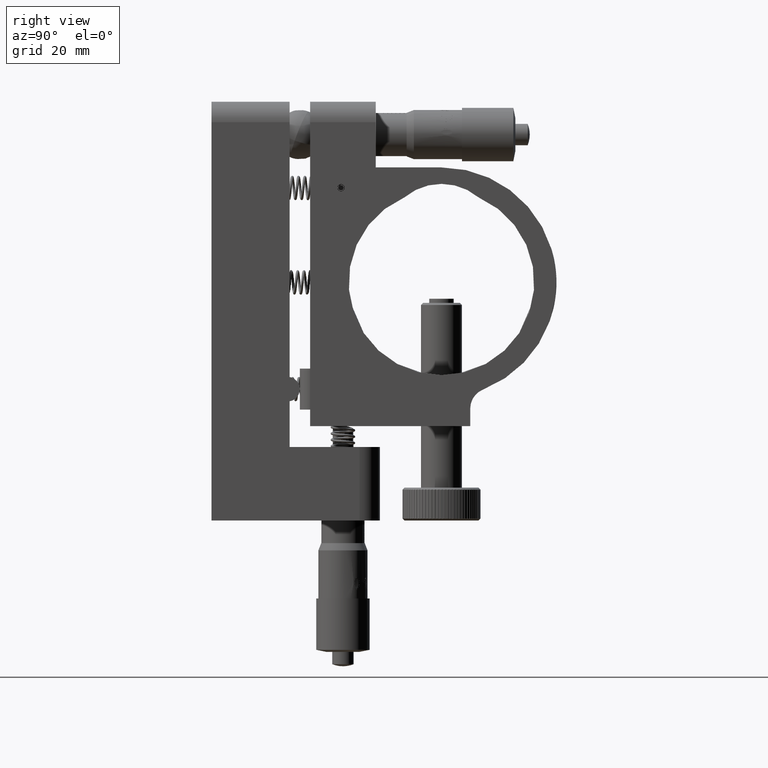
[diagram: clean part render]
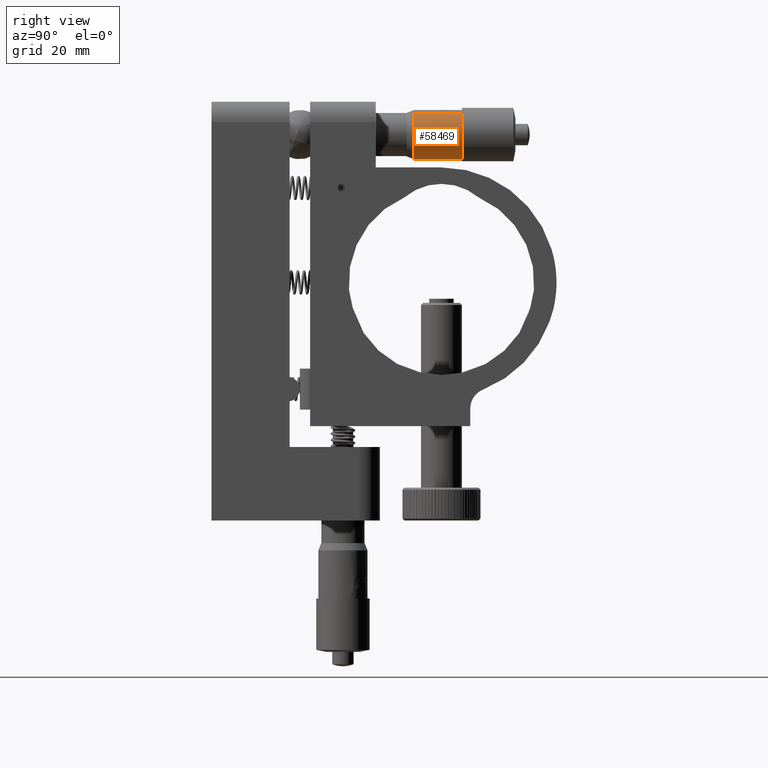
[diagram: same view with one face highlighted and labeled with its STEP entity id]
A machine part, right view. The second image highlights one B-rep face of the part: STEP entity #58469.
In plain terms, the highlighted cylindrical surface (edge-blend (fillet) strip) has radius 6 mm, axis along (-0, 1, -0).
Its self-contained STEP definition (entity closure, byte-faithful):
#130 = CARTESIAN_POINT ( 'NONE',  ( -24.45295444671969400, 57.18856131826734000, 39.91463622018650200 ) ) ;
#183 = EDGE_CURVE ( 'NONE', #14314, #2042, #37379, .T. ) ;
#437 = AXIS2_PLACEMENT_3D ( 'NONE', #68444, #48277, #75464 ) ;
#779 = CARTESIAN_POINT ( 'NONE',  ( -23.08018545285228700, 55.94865891373993300, 36.97798529665085000 ) ) ;
#933 = CARTESIAN_POINT ( 'NONE',  ( -24.35440204258133800, 57.83460279866693600, 39.79715941435549100 ) ) ;
#979 = CARTESIAN_POINT ( 'NONE',  ( -23.00631776143706000, 57.05354593652226900, 35.72472969687758100 ) ) ;
#1185 = CARTESIAN_POINT ( 'NONE',  ( -23.06282771560687200, 58.64088084506470000, 36.86675253537988100 ) ) ;
#1415 = ORIENTED_EDGE ( 'NONE', *, *, #60451, .T. ) ;
#1596 = CARTESIAN_POINT ( 'NONE',  ( -23.00226594338385400, 56.50676778610056800, 35.83495682554977400 ) ) ;
#1598 = CARTESIAN_POINT ( 'NONE',  ( -24.48615327105688900, 57.41138624932529000, 39.95287651654732000 ) ) ;
#2015 = CARTESIAN_POINT ( 'NONE',  ( -23.13405443465119400, 58.19728186578825600, 37.26133943531726100 ) ) ;
#2042 = VERTEX_POINT ( 'NONE', #82851 ) ;
#2063 = CYLINDRICAL_SURFACE ( 'NONE', #22139, 6.000000000000047100 ) ;
#2073 = CARTESIAN_POINT ( 'NONE',  ( -23.09184865823638300, 56.00775028339808200, 37.04582394446583700 ) ) ;
#2496 = B_SPLINE_CURVE_WITH_KNOTS ( 'NONE', 3,
 ( #58587, #73852, #32021, #3705, #72652, #37817, #44880, #80862, #24410, #17096, #86646, #10085, #58881, #65945, #72939, #31713, #10373, #24106, #31107, #79953, #66231, #38118, #59499, #86939, #45179, #38734, #52785, #52155, #73240 ),
 .UNSPECIFIED., .F., .F.,
 ( 4, 2, 1, 2, 2, 2, 1, 2, 2, 1, 2, 2, 1, 1, 2, 2, 4 ),
 ( 0.0000000000000000000, 0.06250000000002520200, 0.09375000000002574300, 0.1093750000000266200, 0.1250000000000274800, 0.2499999999999875100, 0.3749999999999475400, 0.4374999999999329400, 0.4999999999999184000, 0.6249999999998892000, 0.6874999999998657700, 0.7499999999998423500, 0.8124999999998189200, 0.8437499999998244700, 0.8593749999998273600, 0.8749999999998302500, 1.000000000000000000 ),
 .UNSPECIFIED. ) ;
#2571 = VERTEX_POINT ( 'NONE', #48849 ) ;
#2624 = CARTESIAN_POINT ( 'NONE',  ( -23.00136824409409900, 58.14375675389891300, 35.87185793547177300 ) ) ;
#2625 = CARTESIAN_POINT ( 'NONE',  ( -23.17456950506775100, 57.25554591049384400, 37.43678792753624400 ) ) ;
#2866 = CARTESIAN_POINT ( 'NONE',  ( -24.09527851369905000, 58.18724069328094100, 39.45602435159581500 ) ) ;
#2874 = CARTESIAN_POINT ( 'NONE',  ( -23.15113116649787600, 57.99564004937564500, 37.33823333288960100 ) ) ;
#3030 = CARTESIAN_POINT ( 'NONE',  ( -24.43099429485993200, 57.65911423886687000, 39.88898275470587900 ) ) ;
#3490 = CARTESIAN_POINT ( 'NONE',  ( -24.77637483370674300, 58.42140997023813000, 40.26157135979853800 ) ) ;
#3540 = CIRCLE ( 'NONE', #27880, 6.000000000000064800 ) ;
#3705 = CARTESIAN_POINT ( 'NONE',  ( -23.02077684962613800, 58.70162376830637600, 36.49896459198506400 ) ) ;
#3818 = CARTESIAN_POINT ( 'NONE',  ( -23.00626401795982200, 57.49158252998112300, 35.72589719256306800 ) ) ;
#3850 = CARTESIAN_POINT ( 'NONE',  ( -24.54492478679150100, 57.26967766818085400, 40.01904996656730200 ) ) ;
#3891 = CARTESIAN_POINT ( 'NONE',  ( -24.02462201037741700, 56.62777295524691800, 39.35344805541704700 ) ) ;
#4261 = CARTESIAN_POINT ( 'NONE',  ( -25.08437318517718900, 55.97073262096662200, 40.54619594833162200 ) ) ;
#4308 = VERTEX_POINT ( 'NONE', #6971 ) ;
#4456 = CARTESIAN_POINT ( 'NONE',  ( -24.22253142658068000, 56.17035269379388800, 39.62984957528802000 ) ) ;
#4490 = CARTESIAN_POINT ( 'NONE',  ( -24.43573449484210900, 57.54355098664877500, 39.89454500576250200 ) ) ;
#4572 = CARTESIAN_POINT ( 'NONE',  ( -23.00157242749683600, 56.42958713692380700, 35.86264404841622200 ) ) ;
#4581 = CARTESIAN_POINT ( 'NONE',  ( -25.08931612048833100, 55.97034840379558300, 40.55045135798042800 ) ) ;
#4598 = AXIS2_PLACEMENT_3D ( 'NONE', #8027, #57457, #85502 ) ;
#4599 = VERTEX_POINT ( 'NONE', #21874 ) ;
#4762 = CARTESIAN_POINT ( 'NONE',  ( -24.17361160653788200, 56.28008240509543500, 39.56458237655379400 ) ) ;
#4795 = CARTESIAN_POINT ( 'NONE',  ( -24.43123436921900200, 57.61803526618495400, 39.88926480818475500 ) ) ;
#4878 = CARTESIAN_POINT ( 'NONE',  ( -23.00034662366902400, 56.10140106502115700, 36.06458813907564600 ) ) ;
#5056 = CARTESIAN_POINT ( 'NONE',  ( -24.50112682507893800, 57.25761236491096200, 39.96991040638428000 ) ) ;
#5247 = CARTESIAN_POINT ( 'NONE',  ( -28.99999999999999300, 57.94310676624045400, 35.99999999999997200 ) ) ;
#5334 = CARTESIAN_POINT ( 'NONE',  ( -24.15143678852451000, 56.34715115951234300, 39.53432619175725900 ) ) ;
#5412 = CARTESIAN_POINT ( 'NONE',  ( -23.16426835228861600, 57.75911503949140500, 37.39435923797596200 ) ) ;
#5859 = CARTESIAN_POINT ( 'NONE',  ( -24.28465045895311300, 58.39889714443734900, 39.71024960436651000 ) ) ;
#6094 = VERTEX_POINT ( 'NONE', #19482 ) ;
#6145 = CARTESIAN_POINT ( 'NONE',  ( -23.00228090613760700, 55.99999999999997200, 36.16542572689929400 ) ) ;
#6200 = VECTOR ( 'NONE', #33967, 1000.000000000000000 ) ;
#6438 = CARTESIAN_POINT ( 'NONE',  ( -24.21940882907069400, 58.25624428347286000, 39.62576405216022800 ) ) ;
#6673 = CARTESIAN_POINT ( 'NONE',  ( -25.00043223503356400, 56.07638953363906600, 40.47252284265222500 ) ) ;
#6971 = CARTESIAN_POINT ( 'NONE',  ( -23.14382284776731100, 56.41464016179890000, 37.30582891745760300 ) ) ;
#6983 = CARTESIAN_POINT ( 'NONE',  ( -24.65529458511730700, 55.97345814413865400, 40.13811447721563000 ) ) ;
#7120 = CARTESIAN_POINT ( 'NONE',  ( -24.08385339426212500, 57.94310676624044000, 39.43969512470112400 ) ) ;
#7571 = CARTESIAN_POINT ( 'NONE',  ( -24.77546692397250900, 56.14177546103272900, 40.26067141984285800 ) ) ;
#7791 = CIRCLE ( 'NONE', #64810, 6.000000000000061300 ) ;
#7965 = CARTESIAN_POINT ( 'NONE',  ( -23.00638186665235800, 57.07313286931018600, 35.72333787843142300 ) ) ;
#8027 = CARTESIAN_POINT ( 'NONE',  ( -28.99999999999999600, 61.00000000000000000, 35.99999999999995700 ) ) ;
#8379 = CARTESIAN_POINT ( 'NONE',  ( -28.99999999999999600, 58.55593274636245100, 35.99999999999996400 ) ) ;
#8464 = CARTESIAN_POINT ( 'NONE',  ( -23.03627401543267100, 58.70026071656787500, 36.65888886563468000 ) ) ;
#8545 = ORIENTED_EDGE ( 'NONE', *, *, #43609, .T. ) ;
#8805 = EDGE_CURVE ( 'NONE', #4308, #77519, #73406, .T. ) ;
#9022 = CARTESIAN_POINT ( 'NONE',  ( -23.12603410273106200, 58.27247623408260300, 37.22332950645923000 ) ) ;
#9026 = B_SPLINE_CURVE_WITH_KNOTS ( 'NONE', 3,
 ( #86105, #86414, #2866, #44361 ),
 .UNSPECIFIED., .F., .F.,
 ( 4, 4 ),
 ( 0.0000000000000000000, 1.000000000000000000 ),
 .UNSPECIFIED. ) ;
#9290 = CARTESIAN_POINT ( 'NONE',  ( -24.64236473316643100, 58.55349659004632200, 40.12444763533877500 ) ) ;
#9358 = CARTESIAN_POINT ( 'NONE',  ( -23.10585906447151300, 56.09295506481801400, 37.12210014095577300 ) ) ;
#9369 = CARTESIAN_POINT ( 'NONE',  ( -25.16351784812618300, 58.67550854736185100, 40.61317728884918700 ) ) ;
#9377 = VERTEX_POINT ( 'NONE', #14198 ) ;
#9629 = B_SPLINE_CURVE_WITH_KNOTS ( 'NONE', 3,
 ( #69416, #2874, #32099, #16881, #16313, #85563, #65142, #84940, #2015, #71571, #64207, #9022, #43180, #57814, #29426, #23328, #15711, #29743, #36741, #23623, #37045, #36437, #30039, #43814, #50788, #78885, #30321 ),
 .UNSPECIFIED., .F., .F.,
 ( 4, 2, 2, 2, 1, 1, 2, 2, 1, 1, 2, 2, 1, 2, 2, 4 ),
 ( 0.0000000000000000000, 0.1250000000000503800, 0.1875000000000582000, 0.2500000000000660600, 0.3750000000000806600, 0.4375000000000748800, 0.4687500000000511800, 0.5000000000000274200, 0.6250000000000086600, 0.6874999999999952300, 0.7187499999999893400, 0.7499999999999834600, 0.8124999999999742400, 0.8437499999999783500, 0.8749999999999823500, 1.000000000000000000 ),
 .UNSPECIFIED. ) ;
#9636 = CARTESIAN_POINT ( 'NONE',  ( -23.00551321093579600, 55.92990136030056200, 36.25717740297107400 ) ) ;
#9987 = VERTEX_POINT ( 'NONE', #84598 ) ;
#10085 = CARTESIAN_POINT ( 'NONE',  ( -23.00643242045898200, 58.64535791628224400, 36.28069857954029900 ) ) ;
#10172 = CARTESIAN_POINT ( 'NONE',  ( -24.77070104299729900, 58.46526669368174100, 40.25594090229800100 ) ) ;
#10187 = EDGE_CURVE ( 'NONE', #32982, #14051, #9629, .T. ) ;
#10191 = CARTESIAN_POINT ( 'NONE',  ( -23.00453478181621800, 57.78890503697962800, 35.76673502656520000 ) ) ;
#10254 = CARTESIAN_POINT ( 'NONE',  ( -23.10614510392765600, 56.09477775594357500, 37.12360271840960700 ) ) ;
#10338 = B_SPLINE_CURVE_WITH_KNOTS ( 'NONE', 3,
 ( #70683, #15114, #15430, #37969, #30963, #9636, #59350, #23958, #79803, #80103, #30671, #17252, #73412, #86504, #31259, #17567, #31561, #10527, #38588 ),
 .UNSPECIFIED., .F., .F.,
 ( 4, 1, 1, 2, 2, 2, 2, 1, 2, 2, 4 ),
 ( 0.0000000000000000000, 0.1250000000000932000, 0.1875000000001394700, 0.2187500000001625900, 0.2500000000001857400, 0.5000000000002126100, 0.7500000000002394800, 0.8125000000002239300, 0.8437500000002170500, 0.8750000000002100500, 1.000000000000000000 ),
 .UNSPECIFIED. ) ;
#10373 = CARTESIAN_POINT ( 'NONE',  ( -23.00099552473484700, 58.52975476081451900, 36.11395372831476900 ) ) ;
#10527 = CARTESIAN_POINT ( 'NONE',  ( -23.02857162479182700, 55.82135969603533000, 36.58548798031054600 ) ) ;
#10790 = CARTESIAN_POINT ( 'NONE',  ( -23.00345247728336100, 57.91732111930353000, 35.79602048105522300 ) ) ;
#10846 = ORIENTED_EDGE ( 'NONE', *, *, #49142, .T. ) ;
#11148 = CARTESIAN_POINT ( 'NONE',  ( -24.22843318995459000, 56.16024933874533100, 39.63760407759654200 ) ) ;
#11174 = ORIENTED_EDGE ( 'NONE', *, *, #52359, .T. ) ;
#11183 = CARTESIAN_POINT ( 'NONE',  ( -29.00000000000003600, 55.97010604975014300, 35.99999999999993600 ) ) ;
#11213 = VERTEX_POINT ( 'NONE', #6145 ) ;
#11223 = ORIENTED_EDGE ( 'NONE', *, *, #70346, .T. ) ;
#11262 = CARTESIAN_POINT ( 'NONE',  ( -24.99820230795352700, 56.09127652576054900, 40.47052743645042500 ) ) ;
#11474 = CARTESIAN_POINT ( 'NONE',  ( -24.43841281104527100, 57.52029491255845500, 39.89768195621258000 ) ) ;
#11491 = CARTESIAN_POINT ( 'NONE',  ( -24.41454499424948200, 58.51589957814048400, 39.86973835207499000 ) ) ;
#11550 = CARTESIAN_POINT ( 'NONE',  ( -23.00027531605235300, 56.10933617413584100, 36.05758455225223700 ) ) ;
#11556 = CIRCLE ( 'NONE', #59072, 6.000000000000063100 ) ;
#11559 = CARTESIAN_POINT ( 'NONE',  ( -25.09499591962666500, 55.97010604975015700, 40.55532031061121500 ) ) ;
#11643 = VERTEX_POINT ( 'NONE', #86902 ) ;
#11738 = CARTESIAN_POINT ( 'NONE',  ( -24.22402333143607900, 56.16775631452126300, 39.63181223487765700 ) ) ;
#11762 = CARTESIAN_POINT ( 'NONE',  ( -24.44137837717981700, 57.50190366358985700, 39.90115087593897400 ) ) ;
#11844 = CARTESIAN_POINT ( 'NONE',  ( -23.00110330583300600, 56.04069502106486300, 36.12273033746522800 ) ) ;
#11853 = CARTESIAN_POINT ( 'NONE',  ( -25.02993585948056300, 56.00017327156548700, 40.49874273834318200 ) ) ;
#11989 = B_SPLINE_CURVE_WITH_KNOTS ( 'NONE', 3,
 ( #11559, #4581, #4261, #60381, #53653, #80826, #48441, #67708, #11853, #17988, #46348, #32570, #74116, #53045, #6673, #81430, #11262, #46633, #18283, #39619, #25857 ),
 .UNSPECIFIED., .F., .F.,
 ( 4, 2, 2, 2, 1, 2, 2, 1, 1, 2, 2, 4 ),
 ( 0.0000000000000000000, 0.06249999999998359600, 0.1249999999999671900, 0.2499999999999042400, 0.3749999999998412900, 0.4374999999997997700, 0.4999999999997581900, 0.6249999999996597200, 0.6874999999995984300, 0.7187499999995732300, 0.7499999999995480300, 1.000000000000000000 ),
 .UNSPECIFIED. ) ;
#12077 = ORIENTED_EDGE ( 'NONE', *, *, #37263, .F. ) ;
#12174 = AXIS2_PLACEMENT_3D ( 'NONE', #75875, #48078, #62103 ) ;
#12177 = ORIENTED_EDGE ( 'NONE', *, *, #54260, .T. ) ;
#12439 = EDGE_CURVE ( 'NONE', #43714, #35643, #9026, .T. ) ;
#12842 = CARTESIAN_POINT ( 'NONE',  ( -24.19977827524424200, 58.19186354316088500, 39.59970562132629400 ) ) ;
#12927 = EDGE_LOOP ( 'NONE', ( #12077, #11223, #12177, #25381 ) ) ;
#12960 = EDGE_CURVE ( 'NONE', #25640, #81843, #63288, .T. ) ;
#12967 = CARTESIAN_POINT ( 'NONE',  ( -23.03275780919780800, 55.82096134612195500, 36.62626205791055900 ) ) ;
#13002 = CIRCLE ( 'NONE', #4598, 6.000000000000047100 ) ;
#13148 = CARTESIAN_POINT ( 'NONE',  ( -24.31039405389652000, 56.06080838998323700, 39.74269887332219000 ) ) ;
#13249 = CIRCLE ( 'NONE', #60760, 6.000000000000064800 ) ;
#13278 = CARTESIAN_POINT ( 'NONE',  ( -23.03616558806037100, 55.82236259403122600, 36.65779704332509000 ) ) ;
#13571 = CARTESIAN_POINT ( 'NONE',  ( -23.04260890154036900, 55.82900957319554200, 36.71404428036204600 ) ) ;
#13623 = B_SPLINE_CURVE_WITH_KNOTS ( 'NONE', 3,
 ( #26853, #76011, #82699, #54925, #90004, #61079, #89099, #25966, #40898, #32986, #33562, #20149, #12842, #40293, #6438, #47335, #26274, #82417, #18989, #40602, #75721, #81826, #40006, #88815, #5859, #89391 ),
 .UNSPECIFIED., .F., .F.,
 ( 4, 1, 1, 2, 2, 1, 1, 2, 2, 1, 1, 2, 2, 2, 2, 4 ),
 ( 0.0000000000000000000, 0.1250000000001148800, 0.1875000000001692300, 0.2187500000001673700, 0.2500000000001654800, 0.3750000000001377800, 0.4375000000001217400, 0.4687500000001179100, 0.5000000000001140200, 0.6250000000001226800, 0.6875000000001223500, 0.7187500000001075800, 0.7500000000000927000, 0.8125000000000696100, 0.8750000000000464100, 1.000000000000000000 ),
 .UNSPECIFIED. ) ;
#13734 = CARTESIAN_POINT ( 'NONE',  ( -24.58897243105263500, 55.97047186282966900, 40.06740453369241800 ) ) ;
#13978 = CARTESIAN_POINT ( 'NONE',  ( -24.60991414633710100, 55.97010604975017900, 40.08988339656151100 ) ) ;
#13985 = CARTESIAN_POINT ( 'NONE',  ( -23.24483045715571100, 57.22177681854493900, 37.69647385276574200 ) ) ;
#14051 = VERTEX_POINT ( 'NONE', #52552 ) ;
#14061 = VERTEX_POINT ( 'NONE', #72714 ) ;
#14062 = VERTEX_POINT ( 'NONE', #59570 ) ;
#14084 = FACE_BOUND ( 'NONE', #55433, .T. ) ;
#14103 = CIRCLE ( 'NONE', #28007, 6.000000000000060400 ) ;
#14140 = ORIENTED_EDGE ( 'NONE', *, *, #62422, .T. ) ;
#14164 = CARTESIAN_POINT ( 'NONE',  ( -23.06276945561832600, 55.87921464389480500, 36.86581037342041600 ) ) ;
#14198 = CARTESIAN_POINT ( 'NONE',  ( -24.55931319294930800, 57.27049288561876500, 40.03488546078908400 ) ) ;
#14267 = CARTESIAN_POINT ( 'NONE',  ( -23.07679624491318300, 58.58658205696640000, 36.95690553787322600 ) ) ;
#14297 = EDGE_CURVE ( 'NONE', #4599, #54866, #29116, .T. ) ;
#14314 = VERTEX_POINT ( 'NONE', #90289 ) ;
#14373 = CARTESIAN_POINT ( 'NONE',  ( -24.99655854697239100, 58.46106136950439200, 40.46905550240461500 ) ) ;
#14473 = B_SPLINE_CURVE_WITH_KNOTS ( 'NONE', 3,
 ( #24871, #18195, #11762, #11474, #32787, #4490, #75515, #46260, #53245, #4795, #32482 ),
 .UNSPECIFIED., .F., .F.,
 ( 4, 2, 1, 2, 2, 4 ),
 ( 0.0000000000000000000, 0.2500000000001575400, 0.3750000000001696400, 0.4375000000001756900, 0.5000000000001817400, 1.000000000000000000 ),
 .UNSPECIFIED. ) ;
#14570 = CARTESIAN_POINT ( 'NONE',  ( -23.07087914649952900, 58.61107947327462100, 36.91969809047567000 ) ) ;
#14752 = CARTESIAN_POINT ( 'NONE',  ( -24.43099429486003200, 56.77724270649618900, 39.88898275470583600 ) ) ;
#14768 = CARTESIAN_POINT ( 'NONE',  ( -23.07138151968822000, 55.91093791924463100, 36.92282982664519200 ) ) ;
#14857 = CARTESIAN_POINT ( 'NONE',  ( -23.03794143564137900, 58.69815809307309000, 36.67376817234451600 ) ) ;
#14872 = CARTESIAN_POINT ( 'NONE',  ( -24.76956996465951700, 56.09187348001215400, 40.25482022004673200 ) ) ;
#15027 = ORIENTED_EDGE ( 'NONE', *, *, #60423, .T. ) ;
#15114 = CARTESIAN_POINT ( 'NONE',  ( -23.00282537540034900, 55.98351872619863200, 36.18516614910441100 ) ) ;
#15264 = B_SPLINE_CURVE_WITH_KNOTS ( 'NONE', 3,
 ( #67890, #67584, #74299, #11148, #11738, #4456, #26035, #18167, #33056, #32757, #47113, #4762, #81895, #60267, #5334, #54108, #73994, #39184, #32171, #61147, #26343, #81603, #83427, #81322 ),
 .UNSPECIFIED., .F., .F.,
 ( 4, 1, 2, 2, 2, 2, 1, 2, 2, 1, 1, 2, 2, 4 ),
 ( 0.0000000000000000000, 0.06249999999996865000, 0.09374999999995527200, 0.1249999999999419100, 0.1874999999999358000, 0.2499999999999297200, 0.3749999999999485400, 0.4374999999999759600, 0.5000000000000033300, 0.6250000000000728300, 0.6875000000001260100, 0.7187500000001471000, 0.7500000000001680900, 1.000000000000000000 ),
 .UNSPECIFIED. ) ;
#15430 = CARTESIAN_POINT ( 'NONE',  ( -23.00371815453028300, 55.96185992598720600, 36.21226866570455600 ) ) ;
#15471 = CARTESIAN_POINT ( 'NONE',  ( -23.07959946981264200, 58.57402787291381700, 36.97414515870441000 ) ) ;
#15505 = EDGE_CURVE ( 'NONE', #55645, #57034, #30287, .T. ) ;
#15648 = EDGE_CURVE ( 'NONE', #73960, #77474, #85978, .T. ) ;
#15703 = CARTESIAN_POINT ( 'NONE',  ( -23.00091227229176000, 58.19703751417838300, 35.89478964641289600 ) ) ;
#15711 = CARTESIAN_POINT ( 'NONE',  ( -23.10866740452274100, 58.40761262203363200, 37.13675827737967700 ) ) ;
#16313 = CARTESIAN_POINT ( 'NONE',  ( -23.14562743010929000, 58.06880024847822600, 37.31390487834222800 ) ) ;
#16465 = DIRECTION ( 'NONE',  ( 0.8292296649370803900, 2.312964634635719000E-015, 0.5589080092361690100 ) ) ;
#16595 = CARTESIAN_POINT ( 'NONE',  ( -24.69300252016741100, 58.54267935014321700, 40.17729680235332500 ) ) ;
#16615 = CARTESIAN_POINT ( 'NONE',  ( -23.00182260623596900, 58.09247029596509300, 35.85180980486605100 ) ) ;
#16672 = CARTESIAN_POINT ( 'NONE',  ( -23.13205437481964200, 56.29483926183101500, 37.25188628279470700 ) ) ;
#16797 = CARTESIAN_POINT ( 'NONE',  ( -24.45816860992351800, 57.45058818535790100, 39.92070256783031100 ) ) ;
#16881 = CARTESIAN_POINT ( 'NONE',  ( -23.14659253802459200, 58.05685282052081000, 37.31819424893046700 ) ) ;
#16896 = ORIENTED_EDGE ( 'NONE', *, *, #183, .T. ) ;
#16915 = CARTESIAN_POINT ( 'NONE',  ( -23.17265050238074400, 57.02341494109116800, 37.42898493145492000 ) ) ;
#17096 = CARTESIAN_POINT ( 'NONE',  ( -23.01304548547925000, 58.68608934613679700, 36.39689366359957700 ) ) ;
#17186 = CARTESIAN_POINT ( 'NONE',  ( -24.76325137993999100, 58.48417656993930100, 40.24852602376317600 ) ) ;
#17205 = CARTESIAN_POINT ( 'NONE',  ( -23.17280245949257600, 57.03250257608957000, 37.42960446474991400 ) ) ;
#17252 = CARTESIAN_POINT ( 'NONE',  ( -23.02092807417287200, 55.83035891568387400, 36.50080352175821500 ) ) ;
#17268 = CARTESIAN_POINT ( 'NONE',  ( -23.12613982916660800, 56.24243019229216900, 37.22390484763977300 ) ) ;
#17445 = VECTOR ( 'NONE', #89913, 1000.000000000000000 ) ;
#17559 = CARTESIAN_POINT ( 'NONE',  ( -24.52548049600560300, 57.26670473941992900, 39.99733438127930900 ) ) ;
#17567 = CARTESIAN_POINT ( 'NONE',  ( -23.02507733640848600, 55.82381854678855100, 36.54800624468072100 ) ) ;
#17923 = LINE ( 'NONE', #40711, #46281 ) ;
#17980 = CARTESIAN_POINT ( 'NONE',  ( -23.00001554297834300, 56.15077574917424400, 36.02282569602038400 ) ) ;
#17988 = CARTESIAN_POINT ( 'NONE',  ( -25.02192280387368200, 56.01339232286815700, 40.49164927011943100 ) ) ;
#18136 = VERTEX_POINT ( 'NONE', #80460 ) ;
#18138 = CARTESIAN_POINT ( 'NONE',  ( -23.00650167734526600, 57.40582314403904700, 35.72075475253385000 ) ) ;
#18167 = CARTESIAN_POINT ( 'NONE',  ( -24.21123967007859800, 56.19176600080597700, 39.61494559695307100 ) ) ;
#18195 = CARTESIAN_POINT ( 'NONE',  ( -24.44492972407224200, 57.48747316822256400, 39.90530483874084000 ) ) ;
#18283 = CARTESIAN_POINT ( 'NONE',  ( -24.99568205002519200, 56.11267726115125500, 40.46827073390070200 ) ) ;
#18478 = DIRECTION ( 'NONE',  ( -1.894068659227994600E-016, 1.000000000000000000, -3.087091385534856000E-015 ) ) ;
#18568 = CARTESIAN_POINT ( 'NONE',  ( -23.00039782645800200, 56.09635284650515500, 36.06913689282640000 ) ) ;
#18805 = CARTESIAN_POINT ( 'NONE',  ( -25.17502191499178800, 55.97010604975015700, 40.62272026508290400 ) ) ;
#18989 = CARTESIAN_POINT ( 'NONE',  ( -24.24004779489694200, 58.31135555478013500, 39.65278909173603200 ) ) ;
#19222 = CARTESIAN_POINT ( 'NONE',  ( -32.06408169155043500, 60.99999999999998600, 30.84137582416528300 ) ) ;
#19295 = CARTESIAN_POINT ( 'NONE',  ( -24.43099429485993200, 57.65911423886687000, 39.88898275470587900 ) ) ;
#19474 = VERTEX_POINT ( 'NONE', #85811 ) ;
#19482 = CARTESIAN_POINT ( 'NONE',  ( -24.59973921483268100, 58.55593274636246500, 40.07893429985327300 ) ) ;
#19668 = CARTESIAN_POINT ( 'NONE',  ( -24.56590864886835800, 58.55506614167743600, 40.04243866108840400 ) ) ;
#19692 = CARTESIAN_POINT ( 'NONE',  ( -24.14457968462193100, 57.94310676624046900, 39.52489624826237200 ) ) ;
#19708 = CARTESIAN_POINT ( 'NONE',  ( -23.17302095108858900, 57.46039718540511400, 37.43049550053491700 ) ) ;
#19784 = DIRECTION ( 'NONE',  ( -0.5106802819250687600, -2.312964634635723700E-015, -0.8597706959724390500 ) ) ;
#19971 = LINE ( 'NONE', #19295, #75693 ) ;
#20144 = CARTESIAN_POINT ( 'NONE',  ( -24.30068770763979900, 56.06932486752736400, 39.73048107653725200 ) ) ;
#20150 = DIRECTION ( 'NONE',  ( -0.5106802819250689800, -2.312964634635724500E-015, -0.8597706959724388300 ) ) ;
#20149 = CARTESIAN_POINT ( 'NONE',  ( -24.19891772142350200, 58.18883612161917500, 39.59855719822414200 ) ) ;
#20247 = CARTESIAN_POINT ( 'NONE',  ( -24.50248253286068900, 58.54579904753331500, 39.97144388708236600 ) ) ;
#20306 = EDGE_CURVE ( 'NONE', #81843, #57578, #14103, .T. ) ;
#20559 = CARTESIAN_POINT ( 'NONE',  ( -23.04729613475167900, 55.83732698367515500, 36.75212008813850400 ) ) ;
#20733 = CARTESIAN_POINT ( 'NONE',  ( -24.51579048305997700, 55.97590605360862500, 39.98646521998735900 ) ) ;
#20986 = CARTESIAN_POINT ( 'NONE',  ( -24.77604057964662900, 56.15461389812183100, 40.26124008202766900 ) ) ;
#21071 = CARTESIAN_POINT ( 'NONE',  ( -25.04730354493773300, 58.54616425471004200, 40.51400144109842900 ) ) ;
#21109 = VERTEX_POINT ( 'NONE', #27838 ) ;
#21308 = CIRCLE ( 'NONE', #43302, 6.000000000000059500 ) ;
#21407 = CARTESIAN_POINT ( 'NONE',  ( -24.43620504795048400, 57.07817626285575600, 39.89509715194138600 ) ) ;
#21539 = LINE ( 'NONE', #933, #77234 ) ;
#21572 = CARTESIAN_POINT ( 'NONE',  ( -29.00000000000001400, 56.77724270649617500, 35.99999999999997200 ) ) ;
#21573 = CARTESIAN_POINT ( 'NONE',  ( -24.70671268467743800, 55.99395892893448200, 40.19142123266167500 ) ) ;
#21610 = B_SPLINE_CURVE_WITH_KNOTS ( 'NONE', 3,
 ( #2073, #23077, #79226, #72234, #80123, #37401, #9358, #10254, #31578, #58461, #66401, #17268, #30689, #79824, #16672, #45345, #72532, #59070, #30375 ),
 .UNSPECIFIED., .F., .F.,
 ( 4, 2, 1, 2, 2, 2, 1, 1, 2, 2, 4 ),
 ( 0.0000000000000000000, 0.1249999999999841800, 0.1875000000000060800, 0.2187500000000170100, 0.2500000000000279800, 0.5000000000000042200, 0.6250000000000081000, 0.6875000000000021100, 0.7187499999999696900, 0.7499999999999371600, 1.000000000000000000 ),
 .UNSPECIFIED. ) ;
#21768 = CARTESIAN_POINT ( 'NONE',  ( -23.06670456610101300, 55.89269903853269000, 36.89249648827377800 ) ) ;
#21782 = B_SPLINE_CURVE_WITH_KNOTS ( 'NONE', 3,
 ( #81944, #81059, #80740, #38925, #11491, #82240, #69415, #76421, #20247, #33667, #61766, #27580, #19668, #82806 ),
 .UNSPECIFIED., .F., .F.,
 ( 4, 2, 2, 1, 1, 2, 2, 4 ),
 ( 0.0000000000000000000, 0.2499999999999649200, 0.4999999999999298300, 0.6249999999999220600, 0.6874999999999114000, 0.7187499999998965300, 0.7499999999998815400, 1.000000000000000000 ),
 .UNSPECIFIED. ) ;
#21874 = CARTESIAN_POINT ( 'NONE',  ( -24.60991414633710100, 55.97010604975017900, 40.08988339656151100 ) ) ;
#21955 = LINE ( 'NONE', #59063, #65693 ) ;
#22021 = CARTESIAN_POINT ( 'NONE',  ( -24.43381049618918500, 57.03465970293178300, 39.89228899305404500 ) ) ;
#22139 = AXIS2_PLACEMENT_3D ( 'NONE', #54926, #83013, #20150 ) ;
#22363 = VERTEX_POINT ( 'NONE', #26725 ) ;
#22406 = CARTESIAN_POINT ( 'NONE',  ( -24.11837225588005800, 58.67550854736185100, 39.48851122512728300 ) ) ;
#22711 = CARTESIAN_POINT ( 'NONE',  ( -23.14557837937418900, 56.43684098515477400, 37.31370185084783500 ) ) ;
#23077 = CARTESIAN_POINT ( 'NONE',  ( -23.09511318037983300, 56.02740852678938000, 37.06426614115081000 ) ) ;
#23245 = CARTESIAN_POINT ( 'NONE',  ( -24.77637483370665400, 57.38619354491912400, 40.26157135979853100 ) ) ;
#23319 = CARTESIAN_POINT ( 'NONE',  ( -23.00050154837622100, 58.25699324386391000, 35.92242211032962700 ) ) ;
#23328 = CARTESIAN_POINT ( 'NONE',  ( -23.11113645923845900, 58.39052018417323400, 37.14952863954738400 ) ) ;
#23614 = CARTESIAN_POINT ( 'NONE',  ( -23.00230467434487400, 58.04006139633654700, 35.83367523824411200 ) ) ;
#23615 = CARTESIAN_POINT ( 'NONE',  ( -23.15422582486267400, 56.55538792527099900, 37.35165249632090200 ) ) ;
#23623 = CARTESIAN_POINT ( 'NONE',  ( -23.10334501322304800, 58.44311331205647500, 37.10886263544269100 ) ) ;
#23891 = CARTESIAN_POINT ( 'NONE',  ( -24.67992175486251600, 58.54708537838501300, 40.16379812206132300 ) ) ;
#23911 = CARTESIAN_POINT ( 'NONE',  ( -23.00637224875997700, 57.45939258086345800, 35.72354184438926700 ) ) ;
#23958 = CARTESIAN_POINT ( 'NONE',  ( -23.00736124498536500, 55.90306430150113900, 36.29922848682986800 ) ) ;
#24090 = VERTEX_POINT ( 'NONE', #87176 ) ;
#24106 = CARTESIAN_POINT ( 'NONE',  ( -23.00049258601821100, 58.49101767115305300, 36.07779117022537500 ) ) ;
#24147 = VERTEX_POINT ( 'NONE', #66503 ) ;
#24219 = CARTESIAN_POINT ( 'NONE',  ( -23.00399847671024700, 57.85419313899435400, 35.78093762412724700 ) ) ;
#24220 = CARTESIAN_POINT ( 'NONE',  ( -23.17241489652100100, 57.00980711703658700, 37.42802403927909400 ) ) ;
#24410 = CARTESIAN_POINT ( 'NONE',  ( -23.01539908650614700, 58.69368674411190100, 36.43091569858888300 ) ) ;
#24521 = CARTESIAN_POINT ( 'NONE',  ( -23.17378245070479900, 57.09538844869052100, 37.43359734944228700 ) ) ;
#24555 = CARTESIAN_POINT ( 'NONE',  ( -24.47363573731261300, 57.23376154935300500, 39.93853447003625900 ) ) ;
#24610 = EDGE_CURVE ( 'NONE', #24147, #4308, #21610, .T. ) ;
#24871 = CARTESIAN_POINT ( 'NONE',  ( -24.45042710024390700, 57.46867870394188300, 39.91169866296027600 ) ) ;
#24905 = VERTEX_POINT ( 'NONE', #89800 ) ;
#25031 = ORIENTED_EDGE ( 'NONE', *, *, #65236, .T. ) ;
#25096 = CARTESIAN_POINT ( 'NONE',  ( -24.74440267586966900, 58.51091162711941300, 40.22964706802066100 ) ) ;
#25262 = CARTESIAN_POINT ( 'NONE',  ( -23.00099312933380300, 56.36721252921152100, 35.89017577288382200 ) ) ;
#25358 = AXIS2_PLACEMENT_3D ( 'NONE', #80061, #80365, #38240 ) ;
#25381 = ORIENTED_EDGE ( 'NONE', *, *, #33284, .F. ) ;
#25403 = CARTESIAN_POINT ( 'NONE',  ( -24.70135015147186400, 58.53947944717642600, 40.18588644685741000 ) ) ;
#25406 = EDGE_CURVE ( 'NONE', #2042, #60079, #68680, .T. ) ;
#25505 = EDGE_CURVE ( 'NONE', #24090, #37151, #75392, .T. ) ;
#25553 = VECTOR ( 'NONE', #63707, 1000.000000000000000 ) ;
#25640 = VERTEX_POINT ( 'NONE', #37520 ) ;
#25759 = DIRECTION ( 'NONE',  ( 0.8150505060220792900, 2.312964634635719000E-015, 0.5793899141624337900 ) ) ;
#25857 = CARTESIAN_POINT ( 'NONE',  ( -24.99385352400339900, 56.16441672637422000, 40.46663076746464300 ) ) ;
#25966 = CARTESIAN_POINT ( 'NONE',  ( -24.17518892416913100, 58.09603731704695700, 39.56668946449725900 ) ) ;
#26035 = CARTESIAN_POINT ( 'NONE',  ( -24.21576819085966600, 56.18282765232272200, 39.62093656853029000 ) ) ;
#26117 = CARTESIAN_POINT ( 'NONE',  ( -23.17456950506775100, 57.25554591049384400, 37.43678792753624400 ) ) ;
#26274 = CARTESIAN_POINT ( 'NONE',  ( -24.23590260339752300, 58.30103977266490000, 39.64738028165808000 ) ) ;
#26343 = CARTESIAN_POINT ( 'NONE',  ( -24.11400511392072900, 56.48634586526028300, 39.48239239515123000 ) ) ;
#26639 = ORIENTED_EDGE ( 'NONE', *, *, #25505, .T. ) ;
#26683 = DIRECTION ( 'NONE',  ( 1.353290164854756700E-016, -1.000000000000000000, 2.996047043520799800E-015 ) ) ;
#26716 = CARTESIAN_POINT ( 'NONE',  ( -23.15815095148634800, 57.88166930660415900, 37.36864287954703200 ) ) ;
#26725 = CARTESIAN_POINT ( 'NONE',  ( -23.03137421254281800, 55.82063629850085100, 36.61278561447080200 ) ) ;
#26847 = CARTESIAN_POINT ( 'NONE',  ( -24.26751126841793700, 56.10379464832406200, 39.68838517897587100 ) ) ;
#26849 = EDGE_CURVE ( 'NONE', #21109, #9987, #65914, .T. ) ;
#26853 = CARTESIAN_POINT ( 'NONE',  ( -24.14457968462193100, 57.94310676624046900, 39.52489624826237200 ) ) ;
#26871 = CARTESIAN_POINT ( 'NONE',  ( -23.00657881669864600, 57.15347570158066800, 35.71909797680467600 ) ) ;
#26932 = VECTOR ( 'NONE', #67404, 1000.000000000000000 ) ;
#26953 = EDGE_CURVE ( 'NONE', #69923, #18136, #68686, .T. ) ;
#27148 = CARTESIAN_POINT ( 'NONE',  ( -24.53440665497336000, 55.97373097063475500, 40.00732670475961300 ) ) ;
#27282 = CARTESIAN_POINT ( 'NONE',  ( -23.03464020108218700, 55.82157066185245500, 36.64393357657780800 ) ) ;
#27580 = CARTESIAN_POINT ( 'NONE',  ( -24.53850697399156300, 58.55266215770767200, 40.01199619553076300 ) ) ;
#27716 = CARTESIAN_POINT ( 'NONE',  ( -24.77420783951870900, 56.12434180762920000, 40.25942260882226300 ) ) ;
#27766 = CARTESIAN_POINT ( 'NONE',  ( -24.57037007093844100, 55.97119005298093700, 40.04709427955555900 ) ) ;
#27792 = DIRECTION ( 'NONE',  ( -1.353290164854765600E-016, 1.000000000000000000, -2.996047043520803000E-015 ) ) ;
#27838 = CARTESIAN_POINT ( 'NONE',  ( -23.00050154837622100, 58.25699324386391000, 35.92242211032962700 ) ) ;
#27880 = AXIS2_PLACEMENT_3D ( 'NONE', #37802, #66834, #38411 ) ;
#28007 = AXIS2_PLACEMENT_3D ( 'NONE', #11183, #66123, #80736 ) ;
#28081 = CARTESIAN_POINT ( 'NONE',  ( -25.06373107550879500, 58.55273473556730600, 40.52834937985107200 ) ) ;
#28124 = CARTESIAN_POINT ( 'NONE',  ( -24.43099429485995700, 56.90789034092149000, 39.88898275470588600 ) ) ;
#28186 = CARTESIAN_POINT ( 'NONE',  ( -23.05481396869752300, 55.85524460703830100, 36.80940380875815500 ) ) ;
#28491 = CARTESIAN_POINT ( 'NONE',  ( -23.05760419344635500, 55.86314561254354100, 36.82961811583098200 ) ) ;
#28587 = CARTESIAN_POINT ( 'NONE',  ( -23.08183120458211900, 58.56380404755427800, 36.98761591084668500 ) ) ;
#28610 = CARTESIAN_POINT ( 'NONE',  ( -24.75345010707938800, 56.04575737394818400, 40.23874571204680000 ) ) ;
#28680 = VERTEX_POINT ( 'NONE', #44093 ) ;
#28691 = CARTESIAN_POINT ( 'NONE',  ( -23.00254892752092700, 56.53687899270887800, 35.82512218991277600 ) ) ;
#28983 = CARTESIAN_POINT ( 'NONE',  ( -23.00486364808849500, 56.80130213335910800, 35.75838836036308500 ) ) ;
#28984 = CARTESIAN_POINT ( 'NONE',  ( -25.02375732271493500, 58.52844989204436400, 40.49327649512124300 ) ) ;
#29105 = ORIENTED_EDGE ( 'NONE', *, *, #81968, .T. ) ;
#29116 = B_SPLINE_CURVE_WITH_KNOTS ( 'NONE', 3,
 ( #40595, #13734, #27766, #82411, #27148, #62558, #69304, #20733, #83313, #76616, #61368, #47907, #68701, #55211, #69594, #33853, #47331, #34746, #13148, #20144, #89094, #68397, #61660, #26847, #41497 ),
 .UNSPECIFIED., .F., .F.,
 ( 4, 2, 1, 2, 2, 2, 2, 1, 2, 2, 1, 2, 2, 4 ),
 ( 0.0000000000000000000, 0.1249999999999996100, 0.1874999999999986400, 0.2187500000000133200, 0.2500000000000280300, 0.3750000000000247000, 0.5000000000000214300, 0.6250000000000181000, 0.6875000000000275300, 0.7500000000000368600, 0.8125000000000461900, 0.8437500000000351900, 0.8750000000000242000, 1.000000000000000000 ),
 .UNSPECIFIED. ) ;
#29179 = CARTESIAN_POINT ( 'NONE',  ( -23.03373536159312000, 58.70267137083422400, 36.63538035342393300 ) ) ;
#29289 = CARTESIAN_POINT ( 'NONE',  ( -23.00262355100848300, 56.54484721311708700, 35.82258144312619700 ) ) ;
#29332 = CARTESIAN_POINT ( 'NONE',  ( -24.43413716022774600, 57.04132328457983200, 39.89267216162927100 ) ) ;
#29426 = CARTESIAN_POINT ( 'NONE',  ( -23.11683897835800400, 58.34902065601113500, 37.17851677986106300 ) ) ;
#29616 = CARTESIAN_POINT ( 'NONE',  ( -23.00300525265473100, 56.58586212002955300, 35.81000621629288400 ) ) ;
#29717 = CARTESIAN_POINT ( 'NONE',  ( -24.65199256545443500, 58.55234067566868100, 40.13459139184893600 ) ) ;
#29723 = ORIENTED_EDGE ( 'NONE', *, *, #53743, .T. ) ;
#29743 = CARTESIAN_POINT ( 'NONE',  ( -23.10701628017580900, 58.41885356411631800, 37.12816754500881400 ) ) ;
#30028 = DIRECTION ( 'NONE',  ( 0.6508340133955622400, 2.312964634635719400E-015, 0.7592200517685403500 ) ) ;
#30032 = CARTESIAN_POINT ( 'NONE',  ( -23.14962749119362000, 56.48941233586473500, 37.33159569027738900 ) ) ;
#30039 = CARTESIAN_POINT ( 'NONE',  ( -23.09630649700869400, 58.48708519882844600, 37.07071200561562600 ) ) ;
#30091 = ORIENTED_EDGE ( 'NONE', *, *, #50390, .T. ) ;
#30104 = ORIENTED_EDGE ( 'NONE', *, *, #25406, .T. ) ;
#30208 = CARTESIAN_POINT ( 'NONE',  ( -24.53073313563188400, 57.38913155227581300, 40.00320681949572300 ) ) ;
#30287 = CIRCLE ( 'NONE', #78301, 6.000000000000054200 ) ;
#30311 = CARTESIAN_POINT ( 'NONE',  ( -23.00065733858597000, 58.23114371571576700, 35.91037404965793900 ) ) ;
#30312 = CARTESIAN_POINT ( 'NONE',  ( -23.17432473724393200, 57.16669913901150600, 37.43579552085067500 ) ) ;
#30321 = CARTESIAN_POINT ( 'NONE',  ( -23.08355208932109200, 58.55593274636240200, 36.99781968322199800 ) ) ;
#30375 = CARTESIAN_POINT ( 'NONE',  ( -23.14382284776731100, 56.41464016179890000, 37.30582891745760300 ) ) ;
#30477 = VERTEX_POINT ( 'NONE', #82745 ) ;
#30579 = EDGE_CURVE ( 'NONE', #64293, #36268, #37262, .T. ) ;
#30671 = CARTESIAN_POINT ( 'NONE',  ( -23.01673375002196700, 55.84082219211959600, 36.44967673697851800 ) ) ;
#30689 = CARTESIAN_POINT ( 'NONE',  ( -23.12967166532449100, 56.27313190521104500, 37.24067869771327800 ) ) ;
#30963 = CARTESIAN_POINT ( 'NONE',  ( -23.00521927252091800, 55.93456836829549400, 36.25023211286640600 ) ) ;
#31057 = ORIENTED_EDGE ( 'NONE', *, *, #76721, .T. ) ;
#31077 = CARTESIAN_POINT ( 'NONE',  ( -29.00000000000001400, 56.62777295524693200, 35.99999999999997200 ) ) ;
#31107 = CARTESIAN_POINT ( 'NONE',  ( -23.00023192238712300, 58.46388716776564800, 36.05407117018313600 ) ) ;
#31259 = CARTESIAN_POINT ( 'NONE',  ( -23.02446912700519400, 55.82447932318496700, 36.54134690254006300 ) ) ;
#31295 = CARTESIAN_POINT ( 'NONE',  ( -24.08082987508542100, 56.10961115091615900, 39.43573101951103200 ) ) ;
#31515 = CARTESIAN_POINT ( 'NONE',  ( -23.00667108102630800, 57.25554591049383600, 35.71714231671111900 ) ) ;
#31554 = CARTESIAN_POINT ( 'NONE',  ( -24.47753534859914000, 57.23857366339355900, 39.94301380337890400 ) ) ;
#31561 = CARTESIAN_POINT ( 'NONE',  ( -23.02664775832439000, 55.82232058108423400, 36.56502201602891900 ) ) ;
#31578 = CARTESIAN_POINT ( 'NONE',  ( -23.11110172787024900, 56.12712482071558600, 37.14953375155771200 ) ) ;
#31639 = VERTEX_POINT ( 'NONE', #69764 ) ;
#31713 = CARTESIAN_POINT ( 'NONE',  ( -23.00186554344970300, 58.56261585421722800, 36.15186172093039100 ) ) ;
#31981 = CARTESIAN_POINT ( 'NONE',  ( -24.02462201037741700, 56.62777295524691800, 39.35344805541704700 ) ) ;
#32021 = CARTESIAN_POINT ( 'NONE',  ( -23.02297697024214400, 58.70343947991744200, 36.52487740076030300 ) ) ;
#32099 = CARTESIAN_POINT ( 'NONE',  ( -23.14915199717577100, 58.02341137279980600, 37.32952533753109500 ) ) ;
#32137 = CARTESIAN_POINT ( 'NONE',  ( -23.00653577682959000, 57.38798554436172600, 35.72002388943983700 ) ) ;
#32171 = CARTESIAN_POINT ( 'NONE',  ( -24.11875316777127400, 56.46664896257677000, 39.48904506449456900 ) ) ;
#32482 = CARTESIAN_POINT ( 'NONE',  ( -24.43099429485993200, 57.65911423886687000, 39.88898275470587900 ) ) ;
#32558 = CARTESIAN_POINT ( 'NONE',  ( -23.00066424779018000, 56.07190724387664500, 36.09145588156875600 ) ) ;
#32564 = ORIENTED_EDGE ( 'NONE', *, *, #63357, .T. ) ;
#32570 = CARTESIAN_POINT ( 'NONE',  ( -25.01404467625031500, 56.02929836290034900, 40.48465892184058400 ) ) ;
#32586 = EDGE_CURVE ( 'NONE', #77474, #43714, #50196, .T. ) ;
#32757 = CARTESIAN_POINT ( 'NONE',  ( -24.19693721373418800, 56.22257583262192100, 39.59591870603065900 ) ) ;
#32776 = CARTESIAN_POINT ( 'NONE',  ( -29.00000000000003600, 55.85053024875075100, 35.99999999999993600 ) ) ;
#32787 = CARTESIAN_POINT ( 'NONE',  ( -24.43701218729700700, 57.53088048707757500, 39.89604226930234200 ) ) ;
#32952 = ORIENTED_EDGE ( 'NONE', *, *, #60868, .T. ) ;
#32982 = VERTEX_POINT ( 'NONE', #56903 ) ;
#32986 = CARTESIAN_POINT ( 'NONE',  ( -24.19225563315344400, 58.16490581234460700, 39.58965577580701700 ) ) ;
#33056 = CARTESIAN_POINT ( 'NONE',  ( -24.20214421352374100, 56.21088611670054300, 39.60286511245364200 ) ) ;
#33284 = EDGE_CURVE ( 'NONE', #60947, #43032, #13002, .T. ) ;
#33562 = CARTESIAN_POINT ( 'NONE',  ( -24.19624905510087100, 58.17936349453552900, 39.59499399358788500 ) ) ;
#33667 = CARTESIAN_POINT ( 'NONE',  ( -24.50973061011752200, 58.54731053121262400, 39.97963700879258700 ) ) ;
#33809 = B_SPLINE_CURVE_WITH_KNOTS ( 'NONE', 3,
 ( #42659, #20986, #7571, #62508, #77430, #27716, #49648, #14872, #56071, #28610, #63088, #77131, #41759, #63402, #21573, #83264, #83550, #48749, #56672, #6983, #55778, #13978 ),
 .UNSPECIFIED., .F., .F.,
 ( 4, 1, 2, 2, 2, 1, 2, 2, 1, 1, 2, 2, 4 ),
 ( 0.0000000000000000000, 0.06250000000000151300, 0.09375000000003430600, 0.1250000000000670900, 0.2500000000001336200, 0.3750000000002001700, 0.4375000000002334200, 0.5000000000002666800, 0.6250000000002944300, 0.6875000000002972100, 0.7187500000003084200, 0.7500000000003196300, 1.000000000000000000 ),
 .UNSPECIFIED. ) ;
#33853 = CARTESIAN_POINT ( 'NONE',  ( -24.34252272706878300, 56.03713608770714000, 39.78259549796965200 ) ) ;
#33967 = DIRECTION ( 'NONE',  ( -1.894068659227994600E-016, 1.000000000000000000, -3.087091385534856000E-015 ) ) ;
#34017 = CARTESIAN_POINT ( 'NONE',  ( -23.17124030737244300, 57.54774220236107900, 37.42322440902980700 ) ) ;
#34090 = DIRECTION ( 'NONE',  ( -1.894068659227994600E-016, 1.000000000000000000, -3.087091385534856000E-015 ) ) ;
#34293 = CARTESIAN_POINT ( 'NONE',  ( -23.04003420454371200, 55.82539149456251700, 36.69222064605691000 ) ) ;
#34581 = CARTESIAN_POINT ( 'NONE',  ( -23.04973666688457700, 55.84257399044369700, 36.77119241373890900 ) ) ;
#34745 = CARTESIAN_POINT ( 'NONE',  ( -25.09499591962658000, 58.55593274636246500, 40.55532031061132200 ) ) ;
#34746 = CARTESIAN_POINT ( 'NONE',  ( -24.32123384669779800, 56.05231507198915600, 39.75623473476115800 ) ) ;
#34818 = CARTESIAN_POINT ( 'NONE',  ( -24.43438926857139400, 57.04626648682612000, 39.89296785829815700 ) ) ;
#34976 = ORIENTED_EDGE ( 'NONE', *, *, #80629, .T. ) ;
#35192 = CARTESIAN_POINT ( 'NONE',  ( -23.15374539491293100, 57.95805374136537600, 37.34955811008614300 ) ) ;
#35372 = CARTESIAN_POINT ( 'NONE',  ( -23.00602174721474200, 56.97602254017700600, 35.73119194498364200 ) ) ;
#35376 = CARTESIAN_POINT ( 'NONE',  ( -23.87152776713747600, 57.22177681854491700, 39.11428524010891300 ) ) ;
#35414 = CARTESIAN_POINT ( 'NONE',  ( -24.44671054341668200, 57.16011624002746300, 39.90738361454116800 ) ) ;
#35567 = CARTESIAN_POINT ( 'NONE',  ( -23.04845736997887700, 58.68072945852881600, 36.76182068671964500 ) ) ;
#35643 = VERTEX_POINT ( 'NONE', #7120 ) ;
#35970 = LINE ( 'NONE', #56712, #41515 ) ;
#35983 = CARTESIAN_POINT ( 'NONE',  ( -23.00324506986718000, 56.61203866165070800, 35.80263270058455300 ) ) ;
#36083 = DIRECTION ( 'NONE',  ( 0.9591949238073764800, 1.156482317317859900E-015, 0.2827456421276223200 ) ) ;
#36268 = VERTEX_POINT ( 'NONE', #50351 ) ;
#36437 = CARTESIAN_POINT ( 'NONE',  ( -23.09795582941717000, 58.47711807209037000, 37.07976654176741200 ) ) ;
#36517 = CARTESIAN_POINT ( 'NONE',  ( -24.45295444671969400, 57.18856131826734000, 39.91463622018650200 ) ) ;
#36613 = CARTESIAN_POINT ( 'NONE',  ( -24.54257164591768300, 57.38738987218130900, 40.01639614891304600 ) ) ;
#36741 = CARTESIAN_POINT ( 'NONE',  ( -23.10636415318205300, 58.42323856616573600, 37.12476024087070000 ) ) ;
#36760 = LINE ( 'NONE', #90218, #26932 ) ;
#36858 = VECTOR ( 'NONE', #84433, 1000.000000000000000 ) ;
#37037 = CARTESIAN_POINT ( 'NONE',  ( -23.15261324092414700, 56.53104710923538100, 37.34465274270707600 ) ) ;
#37045 = CARTESIAN_POINT ( 'NONE',  ( -23.10051644513882600, 58.46134670601929900, 37.09373516047932600 ) ) ;
#37151 = VERTEX_POINT ( 'NONE', #40407 ) ;
#37262 = CIRCLE ( 'NONE', #437, 6.000000000000054200 ) ;
#37263 = EDGE_CURVE ( 'NONE', #62327, #60947, #68449, .T. ) ;
#37329 = CARTESIAN_POINT ( 'NONE',  ( -24.64789197561748000, 58.55285541382336600, 40.13027386713799400 ) ) ;
#37344 = CARTESIAN_POINT ( 'NONE',  ( -23.00128195920569500, 58.15361460566850800, 35.87596651632599500 ) ) ;
#37379 = LINE ( 'NONE', #74014, #48321 ) ;
#37401 = CARTESIAN_POINT ( 'NONE',  ( -23.10493770478774100, 56.08711125742360100, 37.11724958257874400 ) ) ;
#37520 = CARTESIAN_POINT ( 'NONE',  ( -25.17502191499180200, 55.85053024875076500, 40.62272026508293300 ) ) ;
#37637 = CARTESIAN_POINT ( 'NONE',  ( -23.16699831906461800, 56.81157323852306700, 37.40573753843483500 ) ) ;
#37649 = B_SPLINE_CURVE_WITH_KNOTS ( 'NONE', 3,
 ( #26117, #61229, #75869, #61523, #81986, #47191, #40155, #19708, #89549, #34017, #39868, #89852, #88675, #82848, #5412, #54187, #68262, #75264, #26716, #35192 ),
 .UNSPECIFIED., .F., .F.,
 ( 4, 1, 1, 2, 2, 2, 2, 1, 1, 2, 2, 4 ),
 ( 0.0000000000000000000, 0.1249999999999880400, 0.1874999999999816800, 0.2187499999999784900, 0.2499999999999753000, 0.3750000000000207600, 0.5000000000000662800, 0.6250000000001118000, 0.6875000000001347800, 0.7187500000001440000, 0.7500000000001532100, 1.000000000000000000 ),
 .UNSPECIFIED. ) ;
#37802 = CARTESIAN_POINT ( 'NONE',  ( -29.00000000000004600, 57.38619354491910900, 35.99999999999990800 ) ) ;
#37817 = CARTESIAN_POINT ( 'NONE',  ( -23.01898024503673700, 58.69960771183009000, 36.47687855595551600 ) ) ;
#37969 = CARTESIAN_POINT ( 'NONE',  ( -23.00477418560520700, 55.94195176909920500, 36.23950095463335700 ) ) ;
#38118 = CARTESIAN_POINT ( 'NONE',  ( -22.99998821614389800, 58.39962851475157600, 36.00478951329757400 ) ) ;
#38170 = CARTESIAN_POINT ( 'NONE',  ( -32.06408169155042000, 49.28438290688970400, 30.84137582416530800 ) ) ;
#38240 = DIRECTION ( 'NONE',  ( 0.9591949238073764800, 1.156482317317859900E-015, 0.2827456421276223200 ) ) ;
#38241 = CARTESIAN_POINT ( 'NONE',  ( -23.17039154993242900, 56.91571014236112100, 37.41974935198134500 ) ) ;
#38343 = EDGE_CURVE ( 'NONE', #79801, #35643, #11556, .T. ) ;
#38390 = CARTESIAN_POINT ( 'NONE',  ( -23.00065531100005600, 56.32352214222775900, 35.91130481834577600 ) ) ;
#38411 = DIRECTION ( 'NONE',  ( 0.7401144678417694900, 2.312964634635717800E-015, 0.6724809101315029100 ) ) ;
#38549 = CARTESIAN_POINT ( 'NONE',  ( -23.15990515251471000, 56.65157057720413300, 37.37599407855580600 ) ) ;
#38588 = CARTESIAN_POINT ( 'NONE',  ( -23.03137421254281800, 55.82063629850085100, 36.61278561447080200 ) ) ;
#38626 = CARTESIAN_POINT ( 'NONE',  ( -24.10969696386748500, 55.85053024875076500, 39.47633948497461600 ) ) ;
#38734 = CARTESIAN_POINT ( 'NONE',  ( -23.00005706275884200, 58.35107560739209000, 35.97379061675700700 ) ) ;
#38851 = CARTESIAN_POINT ( 'NONE',  ( -23.00531884847458400, 57.68608449327361900, 35.74691982285452200 ) ) ;
#38925 = CARTESIAN_POINT ( 'NONE',  ( -24.38871907383465400, 58.50071451717430200, 39.83897304696022000 ) ) ;
#39136 = CARTESIAN_POINT ( 'NONE',  ( -24.71954063609646100, 58.53078527023575400, 40.20450819768434800 ) ) ;
#39141 = EDGE_CURVE ( 'NONE', #2571, #28680, #21308, .T. ) ;
#39184 = CARTESIAN_POINT ( 'NONE',  ( -24.12307784984938800, 56.44909470412775200, 39.49509278103765600 ) ) ;
#39302 = CARTESIAN_POINT ( 'NONE',  ( -23.00130369916274700, 56.40252707596836500, 35.87437959704477900 ) ) ;
#39619 = CARTESIAN_POINT ( 'NONE',  ( -24.99448551780575700, 56.13498976087628000, 40.46719760629132900 ) ) ;
#39868 = CARTESIAN_POINT ( 'NONE',  ( -23.17049458623973000, 57.57700340361261500, 37.42017010968874000 ) ) ;
#40006 = CARTESIAN_POINT ( 'NONE',  ( -24.26434157964606400, 58.36411525245606000, 39.68423260972535600 ) ) ;
#40155 = CARTESIAN_POINT ( 'NONE',  ( -23.17346478828168800, 57.42622055930399900, 37.43230149233708200 ) ) ;
#40293 = CARTESIAN_POINT ( 'NONE',  ( -24.20886677036588000, 58.22284586304302700, 39.61181243260149600 ) ) ;
#40407 = CARTESIAN_POINT ( 'NONE',  ( -24.45042710024390700, 57.46867870394188300, 39.91169866296027600 ) ) ;
#40524 = ORIENTED_EDGE ( 'NONE', *, *, #32586, .T. ) ;
#40595 = CARTESIAN_POINT ( 'NONE',  ( -24.60991414633710100, 55.97010604975017900, 40.08988339656151100 ) ) ;
#40602 = CARTESIAN_POINT ( 'NONE',  ( -24.24667442831588100, 58.32688559586453200, 39.66141346802805100 ) ) ;
#40711 = CARTESIAN_POINT ( 'NONE',  ( -24.77637483370665400, 57.27049288561876500, 40.26157135979853100 ) ) ;
#40898 = CARTESIAN_POINT ( 'NONE',  ( -24.18300450281391500, 58.12943002960741300, 39.57724623557258100 ) ) ;
#40933 = ORIENTED_EDGE ( 'NONE', *, *, #75902, .F. ) ;
#41470 = AXIS2_PLACEMENT_3D ( 'NONE', #32776, #18478, #25759 ) ;
#41497 = CARTESIAN_POINT ( 'NONE',  ( -24.25210642139518000, 56.12345094269848300, 39.66844743266746300 ) ) ;
#41515 = VECTOR ( 'NONE', #57355, 1000.000000000000000 ) ;
#41759 = CARTESIAN_POINT ( 'NONE',  ( -24.73037333595565100, 56.01447441699996000, 40.21548522096396300 ) ) ;
#41840 = VERTEX_POINT ( 'NONE', #79061 ) ;
#41859 = EDGE_CURVE ( 'NONE', #14061, #21109, #2496, .T. ) ;
#42051 = DIRECTION ( 'NONE',  ( -1.894068659227994600E-016, 1.000000000000000000, -3.087091385534856000E-015 ) ) ;
#42323 = CARTESIAN_POINT ( 'NONE',  ( -23.05777148970029000, 58.65689692143038800, 36.83135477809058500 ) ) ;
#42449 = FACE_BOUND ( 'NONE', #64055, .T. ) ;
#42531 = CARTESIAN_POINT ( 'NONE',  ( -23.07475263842616200, 55.92498046447822400, 36.94417280391259300 ) ) ;
#42659 = CARTESIAN_POINT ( 'NONE',  ( -24.77637483370672900, 56.16441672637422000, 40.26157135979853800 ) ) ;
#42697 = ORIENTED_EDGE ( 'NONE', *, *, #41859, .T. ) ;
#42950 = CARTESIAN_POINT ( 'NONE',  ( -23.02942381346687700, 58.70494435451998800, 36.59405072754055500 ) ) ;
#43032 = VERTEX_POINT ( 'NONE', #19222 ) ;
#43050 = CARTESIAN_POINT ( 'NONE',  ( -25.04087502584685900, 58.54257985638917500, 40.50836419504207700 ) ) ;
#43180 = CARTESIAN_POINT ( 'NONE',  ( -23.12550012884353000, 58.27718440264740000, 37.22076450853857200 ) ) ;
#43302 = AXIS2_PLACEMENT_3D ( 'NONE', #84307, #50119, #36083 ) ;
#43357 = CARTESIAN_POINT ( 'NONE',  ( -23.00633511894506700, 57.05864912327001500, 35.72435248683641600 ) ) ;
#43359 = CARTESIAN_POINT ( 'NONE',  ( -24.55931319294930800, 57.38619354491912400, 40.03488546078908400 ) ) ;
#43609 = EDGE_CURVE ( 'NONE', #77519, #32982, #37649, .T. ) ;
#43673 = CARTESIAN_POINT ( 'NONE',  ( -23.00401881305005600, 56.69825115753435800, 35.78030264320536700 ) ) ;
#43708 = EDGE_LOOP ( 'NONE', ( #59094, #53182, #72396, #81773 ) ) ;
#43714 = VERTEX_POINT ( 'NONE', #22406 ) ;
#43814 = CARTESIAN_POINT ( 'NONE',  ( -23.09536138499796800, 58.49265792618732000, 37.06548347504399700 ) ) ;
#44093 = CARTESIAN_POINT ( 'NONE',  ( -23.24483045715571100, 57.07618220899472300, 37.69647385276574200 ) ) ;
#44290 = CARTESIAN_POINT ( 'NONE',  ( -24.47732101807711300, 57.42025497548133500, 39.94276804718902700 ) ) ;
#44361 = CARTESIAN_POINT ( 'NONE',  ( -24.08385339426212500, 57.94310676624044000, 39.43969512470112400 ) ) ;
#44374 = LINE ( 'NONE', #60804, #66173 ) ;
#44402 = CARTESIAN_POINT ( 'NONE',  ( -23.00134732769523200, 58.14613594739345400, 35.87284436672223400 ) ) ;
#44578 = CARTESIAN_POINT ( 'NONE',  ( -24.49098165362708100, 57.40735923649717900, 39.95838560328610400 ) ) ;
#44676 = FACE_BOUND ( 'NONE', #43708, .T. ) ;
#44677 = CARTESIAN_POINT ( 'NONE',  ( -24.62758199851540300, 58.55479470972749600, 40.10880194513279700 ) ) ;
#44693 = CARTESIAN_POINT ( 'NONE',  ( -23.16480387258106800, 56.75568590607083100, 37.39660154311253100 ) ) ;
#44803 = ORIENTED_EDGE ( 'NONE', *, *, #74484, .F. ) ;
#44880 = CARTESIAN_POINT ( 'NONE',  ( -23.01846946027062700, 58.69888799184627700, 36.47042838846713400 ) ) ;
#44988 = CARTESIAN_POINT ( 'NONE',  ( -23.17181156747348300, 56.97822092667684000, 37.42556078520816200 ) ) ;
#45054 = ORIENTED_EDGE ( 'NONE', *, *, #10187, .T. ) ;
#45179 = CARTESIAN_POINT ( 'NONE',  ( -23.00004466858809600, 58.35597362979996900, 35.97673799092103100 ) ) ;
#45264 = AXIS2_PLACEMENT_3D ( 'NONE', #8379, #77954, #30028 ) ;
#45275 = CARTESIAN_POINT ( 'NONE',  ( -24.76820969491799900, 58.47286011248392900, 40.25346482975790300 ) ) ;
#45345 = CARTESIAN_POINT ( 'NONE',  ( -23.13265246120630900, 56.30043841555608700, 37.25468529531630000 ) ) ;
#45567 = CARTESIAN_POINT ( 'NONE',  ( -24.73334840520864100, 58.52182822721037800, 40.21851814726002100 ) ) ;
#45620 = CARTESIAN_POINT ( 'NONE',  ( -24.53426492011647000, 57.26853711087846900, 40.00715876331788200 ) ) ;
#45763 = VERTEX_POINT ( 'NONE', #3030 ) ;
#46260 = CARTESIAN_POINT ( 'NONE',  ( -24.43435749039630200, 57.55911416233488600, 39.89293059293102300 ) ) ;
#46281 = VECTOR ( 'NONE', #26683, 1000.000000000000000 ) ;
#46348 = CARTESIAN_POINT ( 'NONE',  ( -25.01688253641189200, 56.02296318595372100, 40.48718025215881500 ) ) ;
#46624 = CARTESIAN_POINT ( 'NONE',  ( -23.00017780818053100, 56.12140955033672200, 36.04710423240097600 ) ) ;
#46633 = CARTESIAN_POINT ( 'NONE',  ( -24.99766462669838800, 56.09557947295514400, 40.47004604529473700 ) ) ;
#46714 = ORIENTED_EDGE ( 'NONE', *, *, #54667, .T. ) ;
#46814 = CARTESIAN_POINT ( 'NONE',  ( -24.49192523174292200, 57.25168328669152400, 39.95945834206477800 ) ) ;
#47113 = CARTESIAN_POINT ( 'NONE',  ( -24.18510047037020200, 56.25046241771777700, 39.58007212166734200 ) ) ;
#47191 = CARTESIAN_POINT ( 'NONE',  ( -23.17350194366199600, 57.42291414756059000, 37.43245260421078100 ) ) ;
#47331 = CARTESIAN_POINT ( 'NONE',  ( -24.33671504672642200, 56.04101123426378500, 39.77543713290062800 ) ) ;
#47335 = CARTESIAN_POINT ( 'NONE',  ( -24.23105376248738100, 58.28859347130733000, 39.64104408591364900 ) ) ;
#47543 = CARTESIAN_POINT ( 'NONE',  ( -25.17502191499180200, 55.85053024875076500, 40.62272026508293300 ) ) ;
#47648 = CIRCLE ( 'NONE', #45264, 6.000000000000060400 ) ;
#47907 = CARTESIAN_POINT ( 'NONE',  ( -24.43311824438568900, 55.99419807781267600, 39.89155583044771400 ) ) ;
#48078 = DIRECTION ( 'NONE',  ( -1.894068659227994600E-016, 1.000000000000000000, -3.087091385534856000E-015 ) ) ;
#48277 = DIRECTION ( 'NONE',  ( -1.894068659227994600E-016, 1.000000000000000000, -3.087091385534856000E-015 ) ) ;
#48321 = VECTOR ( 'NONE', #52327, 1000.000000000000000 ) ;
#48441 = CARTESIAN_POINT ( 'NONE',  ( -25.05304118637726400, 55.98032217067446900, 40.51902637781597600 ) ) ;
#48749 = CARTESIAN_POINT ( 'NONE',  ( -24.67576196479763000, 55.97996629125193400, 40.15944480093126900 ) ) ;
#48849 = CARTESIAN_POINT ( 'NONE',  ( -23.87152776713749300, 57.07618220899470200, 39.11428524010892700 ) ) ;
#49011 = ORIENTED_EDGE ( 'NONE', *, *, #70883, .T. ) ;
#49077 = VERTEX_POINT ( 'NONE', #31981 ) ;
#49135 = CARTESIAN_POINT ( 'NONE',  ( -24.99796312907133400, 58.47074540782956100, 40.47031348813737100 ) ) ;
#49142 = EDGE_CURVE ( 'NONE', #11643, #11213, #87480, .T. ) ;
#49184 = CARTESIAN_POINT ( 'NONE',  ( -24.43310319022070600, 57.01792321790949800, 39.89145912913149100 ) ) ;
#49356 = DIRECTION ( 'NONE',  ( 0.7742663262364253300, 2.312964634635721800E-015, 0.6328599023925827200 ) ) ;
#49632 = CARTESIAN_POINT ( 'NONE',  ( -23.07351391383337700, 58.60070208867668400, 36.93647639029979500 ) ) ;
#49648 = CARTESIAN_POINT ( 'NONE',  ( -24.77212579901677700, 56.10526376536123600, 40.25735660319345000 ) ) ;
#49691 = DIRECTION ( 'NONE',  ( 1.353290164854756700E-016, -1.000000000000000000, 2.996047043520799800E-015 ) ) ;
#49727 = CARTESIAN_POINT ( 'NONE',  ( -24.99419555008829600, 58.43307013787445200, 40.46693753260044700 ) ) ;
#50119 = DIRECTION ( 'NONE',  ( -1.894068659227994600E-016, 1.000000000000000000, -3.087091385534856000E-015 ) ) ;
#50196 = CIRCLE ( 'NONE', #12174, 6.000000000000063100 ) ;
#50351 = CARTESIAN_POINT ( 'NONE',  ( -24.35440204258133800, 57.83460279866693600, 39.79715941435549100 ) ) ;
#50357 = CARTESIAN_POINT ( 'NONE',  ( -23.00157242749683600, 56.42958713692380700, 35.86264404841622200 ) ) ;
#50390 = EDGE_CURVE ( 'NONE', #31639, #4599, #33809, .T. ) ;
#50667 = CARTESIAN_POINT ( 'NONE',  ( -24.45042710024390700, 57.46867870394188300, 39.91169866296027600 ) ) ;
#50788 = CARTESIAN_POINT ( 'NONE',  ( -23.09226889731235800, 58.51052654326379400, 37.04828839932875400 ) ) ;
#51070 = CARTESIAN_POINT ( 'NONE',  ( -23.15100984499048700, 56.50813740334295000, 37.33765462424855000 ) ) ;
#51380 = CARTESIAN_POINT ( 'NONE',  ( -23.00156593293799600, 58.12117698667439900, 35.86273365405289600 ) ) ;
#51381 = CARTESIAN_POINT ( 'NONE',  ( -23.16251396320304300, 56.70234496435428900, 37.38702456608653800 ) ) ;
#51684 = CARTESIAN_POINT ( 'NONE',  ( -23.15585222215389300, 56.58187540652149000, 37.35865466375062000 ) ) ;
#51973 = CARTESIAN_POINT ( 'NONE',  ( -23.00241794936174600, 58.02789092667166700, 35.82964786443529400 ) ) ;
#52155 = CARTESIAN_POINT ( 'NONE',  ( -23.00022426890355500, 58.29815780656362300, 35.94386556251220800 ) ) ;
#52267 = CARTESIAN_POINT ( 'NONE',  ( -23.15756309873854600, 56.61068445156035300, 37.36599241415142100 ) ) ;
#52327 = DIRECTION ( 'NONE',  ( -1.353290164854756700E-016, 1.000000000000000000, -2.996047043520799800E-015 ) ) ;
#52359 = EDGE_CURVE ( 'NONE', #54866, #41840, #15264, .T. ) ;
#52552 = CARTESIAN_POINT ( 'NONE',  ( -23.08355208932109200, 58.55593274636240200, 36.99781968322199800 ) ) ;
#52628 = CARTESIAN_POINT ( 'NONE',  ( -24.55931319294930800, 57.27049288561876500, 40.03488546078908400 ) ) ;
#52785 = CARTESIAN_POINT ( 'NONE',  ( -23.00011840768837600, 58.32868947852227800, 35.96049656866305400 ) ) ;
#53045 = CARTESIAN_POINT ( 'NONE',  ( -25.00431417499635200, 56.05695253734573000, 40.47599288723041200 ) ) ;
#53182 = ORIENTED_EDGE ( 'NONE', *, *, #65636, .T. ) ;
#53245 = CARTESIAN_POINT ( 'NONE',  ( -24.43227764352032900, 57.58568605137964600, 39.89049104796909300 ) ) ;
#53331 = CARTESIAN_POINT ( 'NONE',  ( -22.99998517346578800, 56.17799532709564400, 36.00231685655285200 ) ) ;
#53534 = CARTESIAN_POINT ( 'NONE',  ( -24.50841324522688000, 57.26138869273204100, 39.97815959833634700 ) ) ;
#53652 = B_SPLINE_CURVE_WITH_KNOTS ( 'NONE', 3,
 ( #54761, #12967, #27282, #13278, #55336, #62074, #34293, #13571, #20559, #34581, #28186, #28491, #14164, #21768, #14768, #84014, #42531, #63588, #779, #77631, #70622 ),
 .UNSPECIFIED., .F., .F.,
 ( 4, 1, 2, 2, 2, 2, 2, 1, 1, 2, 2, 4 ),
 ( 0.0000000000000000000, 0.06250000000001357200, 0.09375000000002035900, 0.1250000000000271400, 0.2499999999999999700, 0.3749999999999728000, 0.4999999999999456000, 0.6249999999999184000, 0.6874999999999247300, 0.7187499999999291700, 0.7499999999999336100, 1.000000000000000000 ),
 .UNSPECIFIED. ) ;
#53653 = CARTESIAN_POINT ( 'NONE',  ( -25.07362503555664200, 55.97211246274213200, 40.53691596255415400 ) ) ;
#53743 = EDGE_CURVE ( 'NONE', #87080, #24090, #3540, .T. ) ;
#53824 = CARTESIAN_POINT ( 'NONE',  ( -24.51628439188935400, 57.26415929928789700, 39.98701776987444100 ) ) ;
#54108 = CARTESIAN_POINT ( 'NONE',  ( -24.14229151764411100, 56.37755243984952400, 39.52175747065377500 ) ) ;
#54187 = CARTESIAN_POINT ( 'NONE',  ( -23.16369045600625400, 57.77236859820497000, 37.39193838057460800 ) ) ;
#54260 = EDGE_CURVE ( 'NONE', #62287, #43032, #21955, .T. ) ;
#54303 = DIRECTION ( 'NONE',  ( -1.894068659227994600E-016, 1.000000000000000000, -3.087091385534856000E-015 ) ) ;
#54462 = CARTESIAN_POINT ( 'NONE',  ( -24.43099429486003200, 57.83460279866693600, 39.88898275470582900 ) ) ;
#54667 = EDGE_CURVE ( 'NONE', #41840, #49077, #7791, .T. ) ;
#54761 = CARTESIAN_POINT ( 'NONE',  ( -23.03137421254281800, 55.82063629850085100, 36.61278561447080200 ) ) ;
#54866 = VERTEX_POINT ( 'NONE', #67116 ) ;
#54926 = CARTESIAN_POINT ( 'NONE',  ( -29.00000000000000400, 90.04102306920764000, 35.99999999999986500 ) ) ;
#54925 = CARTESIAN_POINT ( 'NONE',  ( -24.16378233946348400, 58.04296051909843600, 39.55119928424787200 ) ) ;
#55211 = CARTESIAN_POINT ( 'NONE',  ( -24.37808098223369400, 56.01593870516802600, 39.82606656003442700 ) ) ;
#55300 = EDGE_CURVE ( 'NONE', #11213, #22363, #10338, .T. ) ;
#55336 = CARTESIAN_POINT ( 'NONE',  ( -23.03709770540063300, 55.82293113025004800, 36.66619371680031500 ) ) ;
#55433 = EDGE_LOOP ( 'NONE', ( #87724, #61584, #10846, #84057, #25031, #57475, #76221, #8545, #45054, #84711, #42697 ) ) ;
#55645 = VERTEX_POINT ( 'NONE', #14752 ) ;
#55778 = CARTESIAN_POINT ( 'NONE',  ( -24.63515341454784400, 55.97079162725133700, 40.11697525801208300 ) ) ;
#56071 = CARTESIAN_POINT ( 'NONE',  ( -24.76138260061103600, 56.06445637142833500, 40.24666409437178100 ) ) ;
#56157 = CARTESIAN_POINT ( 'NONE',  ( -23.00667108102630800, 57.25554591049383600, 35.71714231671111900 ) ) ;
#56158 = CARTESIAN_POINT ( 'NONE',  ( -25.05177702682668800, 58.54815794005123300, 40.51791383562162000 ) ) ;
#56200 = CARTESIAN_POINT ( 'NONE',  ( -24.43436016732997700, 57.04565251731249000, 39.89293371994354200 ) ) ;
#56455 = CARTESIAN_POINT ( 'NONE',  ( -24.99385352400342300, 58.42140997023810900, 40.46663076746457900 ) ) ;
#56575 = CARTESIAN_POINT ( 'NONE',  ( -23.14382284776731100, 56.41464016179890000, 37.30582891745760300 ) ) ;
#56650 = CARTESIAN_POINT ( 'NONE',  ( -23.03473442509533700, 58.70178431276708900, 36.64469260107358700 ) ) ;
#56672 = CARTESIAN_POINT ( 'NONE',  ( -24.67193530554672200, 55.97868653244633200, 40.15546184370794700 ) ) ;
#56712 = CARTESIAN_POINT ( 'NONE',  ( -24.43099429486003200, 56.77724270649618900, 39.88898275470583600 ) ) ;
#56903 = CARTESIAN_POINT ( 'NONE',  ( -23.15374539491293100, 57.95805374136537600, 37.34955811008614300 ) ) ;
#56973 = CARTESIAN_POINT ( 'NONE',  ( -23.07785449922450700, 58.58187700863102500, 36.96343323605297100 ) ) ;
#57034 = VERTEX_POINT ( 'NONE', #67600 ) ;
#57084 = CARTESIAN_POINT ( 'NONE',  ( -23.00459236338258900, 56.76685271405036600, 35.76517113969989500 ) ) ;
#57286 = CARTESIAN_POINT ( 'NONE',  ( -23.03311454468000400, 58.70314044260757000, 36.62951444393730300 ) ) ;
#57355 = DIRECTION ( 'NONE',  ( -1.353290164854756700E-016, 1.000000000000000000, -2.996047043520799800E-015 ) ) ;
#57457 = DIRECTION ( 'NONE',  ( -1.894068659227994600E-016, 1.000000000000000000, -3.087091385534856000E-015 ) ) ;
#57475 = ORIENTED_EDGE ( 'NONE', *, *, #24610, .T. ) ;
#57578 = VERTEX_POINT ( 'NONE', #61260 ) ;
#57814 = CARTESIAN_POINT ( 'NONE',  ( -23.12160888574987500, 58.31067733503586900, 37.20197897331600200 ) ) ;
#58000 = CARTESIAN_POINT ( 'NONE',  ( -24.53519060616757500, 57.38840371721901300, 40.00817766838520100 ) ) ;
#58253 = CIRCLE ( 'NONE', #72923, 6.000000000000049700 ) ;
#58395 = CARTESIAN_POINT ( 'NONE',  ( -24.59973921483268100, 58.55593274636246500, 40.07893429985327300 ) ) ;
#58461 = CARTESIAN_POINT ( 'NONE',  ( -23.11586217054934500, 56.16144173178036400, 37.17365428677388900 ) ) ;
#58469 = ADVANCED_FACE ( 'NONE', ( #61042, #14084, #44676, #42449 ), #2063, .T. ) ;
#58485 = CARTESIAN_POINT ( 'NONE',  ( -25.93591830844959000, 61.00000000000001400, 41.15862417583459600 ) ) ;
#58584 = CARTESIAN_POINT ( 'NONE',  ( -24.51609547667271700, 57.39249675239238300, 39.98683664013848500 ) ) ;
#58587 = CARTESIAN_POINT ( 'NONE',  ( -23.02696129160663600, 58.70540249761167200, 36.56816246623343100 ) ) ;
#58678 = CARTESIAN_POINT ( 'NONE',  ( -24.65139642409910800, 58.55240910984878900, 40.13396340248917200 ) ) ;
#58696 = CARTESIAN_POINT ( 'NONE',  ( -23.16625808927779700, 56.79181687934108400, 37.40266355009052300 ) ) ;
#58881 = CARTESIAN_POINT ( 'NONE',  ( -23.00460643148471700, 58.62005957819528100, 36.23552471211291200 ) ) ;
#58979 = ORIENTED_EDGE ( 'NONE', *, *, #14297, .T. ) ;
#58983 = CARTESIAN_POINT ( 'NONE',  ( -24.70393467205985200, 58.53843594188408200, 40.18854128374984200 ) ) ;
#59001 = CARTESIAN_POINT ( 'NONE',  ( -23.00646757529688100, 57.42188662706112000, 35.72148693457396000 ) ) ;
#59048 = CIRCLE ( 'NONE', #41470, 6.000000000000061300 ) ;
#59063 = CARTESIAN_POINT ( 'NONE',  ( -32.06408169155044200, 90.04102306920762500, 30.84137582416519100 ) ) ;
#59070 = CARTESIAN_POINT ( 'NONE',  ( -23.13910729631661000, 56.36475555526757800, 37.28468135034785300 ) ) ;
#59072 = AXIS2_PLACEMENT_3D ( 'NONE', #5247, #54303, #67801 ) ;
#59088 = ORIENTED_EDGE ( 'NONE', *, *, #65471, .T. ) ;
#59094 = ORIENTED_EDGE ( 'NONE', *, *, #39141, .F. ) ;
#59350 = CARTESIAN_POINT ( 'NONE',  ( -23.00560757379714600, 55.92843635856895200, 36.25938211252623200 ) ) ;
#59392 = DIRECTION ( 'NONE',  ( -1.894068659227994600E-016, 1.000000000000000000, -3.087091385534856000E-015 ) ) ;
#59455 = CARTESIAN_POINT ( 'NONE',  ( -23.00058484319994500, 56.31394576026960400, 35.91619337241915800 ) ) ;
#59499 = CARTESIAN_POINT ( 'NONE',  ( -23.00000864429793900, 58.37429619736255400, 35.98812163395285100 ) ) ;
#59570 = CARTESIAN_POINT ( 'NONE',  ( -24.77637483370665400, 57.27049288561876500, 40.26157135979853100 ) ) ;
#59595 = CARTESIAN_POINT ( 'NONE',  ( -24.76033419038930500, 58.48961447633258400, 40.24561612788710400 ) ) ;
#59691 = DIRECTION ( 'NONE',  ( 0.7401144678417694900, 2.312964634635717800E-015, 0.6724809101315029100 ) ) ;
#59911 = CARTESIAN_POINT ( 'NONE',  ( -23.00288222744094900, 57.97828708059926600, 35.81360448041598200 ) ) ;
#60079 = VERTEX_POINT ( 'NONE', #34745 ) ;
#60267 = CARTESIAN_POINT ( 'NONE',  ( -24.15542697191379100, 56.33436035718977300, 39.53979510339259900 ) ) ;
#60381 = CARTESIAN_POINT ( 'NONE',  ( -25.07594886200088200, 55.97178478155988300, 40.53892648320659500 ) ) ;
#60423 = EDGE_CURVE ( 'NONE', #80569, #87080, #36760, .T. ) ;
#60451 = EDGE_CURVE ( 'NONE', #57578, #14314, #11989, .T. ) ;
#60760 = AXIS2_PLACEMENT_3D ( 'NONE', #87131, #59392, #59691 ) ;
#60804 = CARTESIAN_POINT ( 'NONE',  ( -23.87152776713749300, 57.07618220899470200, 39.11428524010892700 ) ) ;
#60868 = EDGE_CURVE ( 'NONE', #49077, #30477, #88014, .T. ) ;
#60947 = VERTEX_POINT ( 'NONE', #58485 ) ;
#61042 = FACE_OUTER_BOUND ( 'NONE', #12927, .T. ) ;
#61079 = CARTESIAN_POINT ( 'NONE',  ( -24.16832875080727300, 58.06461195454482300, 39.55738038540153700 ) ) ;
#61147 = CARTESIAN_POINT ( 'NONE',  ( -24.11588257151512200, 56.47847249991613700, 39.48502554423739500 ) ) ;
#61229 = CARTESIAN_POINT ( 'NONE',  ( -23.17442722903247100, 57.29505252935969400, 37.43621107194136500 ) ) ;
#61260 = CARTESIAN_POINT ( 'NONE',  ( -25.09499591962666500, 55.97010604975015700, 40.55532031061121500 ) ) ;
#61368 = CARTESIAN_POINT ( 'NONE',  ( -24.44708016770023200, 55.99004169645117900, 39.90787664948890500 ) ) ;
#61523 = CARTESIAN_POINT ( 'NONE',  ( -23.17379827895734600, 57.39430427254095000, 37.43365752792740900 ) ) ;
#61584 = ORIENTED_EDGE ( 'NONE', *, *, #65672, .T. ) ;
#61660 = CARTESIAN_POINT ( 'NONE',  ( -24.27972434937570200, 56.08954372872553100, 39.70394439721249600 ) ) ;
#61766 = CARTESIAN_POINT ( 'NONE',  ( -24.51446844348198400, 58.54822812404632500, 39.98497463026132000 ) ) ;
#62074 = CARTESIAN_POINT ( 'NONE',  ( -23.03736636648742600, 55.82310279963223100, 36.66859760627743000 ) ) ;
#62103 = DIRECTION ( 'NONE',  ( 0.8136046240199864600, 2.312964634635718600E-015, 0.5814185375212045400 ) ) ;
#62275 = ORIENTED_EDGE ( 'NONE', *, *, #15648, .T. ) ;
#62287 = VERTEX_POINT ( 'NONE', #38170 ) ;
#62327 = VERTEX_POINT ( 'NONE', #75991 ) ;
#62422 = EDGE_CURVE ( 'NONE', #36268, #57034, #21539, .T. ) ;
#62508 = CARTESIAN_POINT ( 'NONE',  ( -24.77478494347644400, 56.13173573187777500, 40.25999505161584600 ) ) ;
#62558 = CARTESIAN_POINT ( 'NONE',  ( -24.52422098855866000, 55.97486424955685900, 39.99592620336520800 ) ) ;
#62872 = CARTESIAN_POINT ( 'NONE',  ( -24.99509038859915600, 58.44856345467778200, 40.46774007088723100 ) ) ;
#63065 = CARTESIAN_POINT ( 'NONE',  ( -23.02696129160663600, 58.70540249761167200, 36.56816246623343100 ) ) ;
#63088 = CARTESIAN_POINT ( 'NONE',  ( -24.74286004104648000, 56.02985412740455500, 40.22809518034841900 ) ) ;
#63169 = CARTESIAN_POINT ( 'NONE',  ( -25.09499591962658000, 58.55593274636246500, 40.55532031061132200 ) ) ;
#63288 = LINE ( 'NONE', #47543, #17445 ) ;
#63357 = EDGE_CURVE ( 'NONE', #79801, #19474, #13623, .T. ) ;
#63402 = CARTESIAN_POINT ( 'NONE',  ( -24.71933033763810200, 56.00352398089117400, 40.20428082264608300 ) ) ;
#63588 = CARTESIAN_POINT ( 'NONE',  ( -23.07559836281829700, 55.92862185095951600, 36.94946066071818100 ) ) ;
#63707 = DIRECTION ( 'NONE',  ( 1.353290164854765600E-016, -1.000000000000000000, 2.996047043520803000E-015 ) ) ;
#63784 = CARTESIAN_POINT ( 'NONE',  ( -23.00193952941978600, 56.47362204296833700, 35.84661245844436900 ) ) ;
#63824 = CARTESIAN_POINT ( 'NONE',  ( -24.43190809945041800, 56.97969773649115400, 39.89005628744688200 ) ) ;
#64055 = EDGE_LOOP ( 'NONE', ( #79737, #32564, #29105, #59088, #15027, #29723, #26639, #34976, #66971, #86661, #14140, #85646, #31057, #88130, #71186, #44803, #49011, #30091, #58979, #11174, #46714, #32952, #40933, #69005, #74667, #1415, #16896, #30104, #86891, #62275, #40524, #80282 ) ) ;
#64207 = CARTESIAN_POINT ( 'NONE',  ( -23.12735530705006000, 58.26065597875197700, 37.22965635606830400 ) ) ;
#64286 = CARTESIAN_POINT ( 'NONE',  ( -23.03142560565720500, 58.70426532858367400, 36.61342257192448800 ) ) ;
#64293 = VERTEX_POINT ( 'NONE', #54462 ) ;
#64522 = CARTESIAN_POINT ( 'NONE',  ( -23.00117923482798000, 58.16541610441669300, 35.88096060725630600 ) ) ;
#64569 = EDGE_CURVE ( 'NONE', #73960, #60079, #47648, .T. ) ;
#64810 = AXIS2_PLACEMENT_3D ( 'NONE', #31077, #86000, #16465 ) ;
#65142 = CARTESIAN_POINT ( 'NONE',  ( -23.14241717792836200, 58.10651231997435700, 37.29952531417673400 ) ) ;
#65236 = EDGE_CURVE ( 'NONE', #22363, #24147, #53652, .T. ) ;
#65383 = B_SPLINE_CURVE_WITH_KNOTS ( 'NONE', 3,
 ( #28124, #71184, #63824, #49184, #22021, #29332, #56200, #34818, #21407, #83672, #76971, #35414, #130 ),
 .UNSPECIFIED., .F., .F.,
 ( 4, 1, 1, 1, 2, 2, 2, 4 ),
 ( 0.0000000000000000000, 0.2500000000003097500, 0.3750000000004646300, 0.4375000000005008800, 0.4687500000004716200, 0.5000000000004424200, 0.7500000000002212700, 1.000000000000000000 ),
 .UNSPECIFIED. ) ;
#65428 = CARTESIAN_POINT ( 'NONE',  ( -23.00210803965072500, 58.06134715019591400, 35.84092398755260700 ) ) ;
#65471 = EDGE_CURVE ( 'NONE', #6094, #80569, #74337, .T. ) ;
#65636 = EDGE_CURVE ( 'NONE', #2571, #69923, #44374, .T. ) ;
#65672 = EDGE_CURVE ( 'NONE', #9987, #11643, #76592, .T. ) ;
#65693 = VECTOR ( 'NONE', #72528, 1000.000000000000000 ) ;
#65729 = CARTESIAN_POINT ( 'NONE',  ( -24.66517940846427900, 58.55030992800189400, 40.14844121253147300 ) ) ;
#65914 = B_SPLINE_CURVE_WITH_KNOTS ( 'NONE', 3,
 ( #23319, #30311, #15703, #64522, #37344, #44402, #2624, #51380, #16615, #65428, #23614, #51973, #59911, #10790, #24219, #73364, #10191, #38851, #66048, #3818, #23911, #59001, #18138, #66656, #32137, #80980, #72757, #31515 ),
 .UNSPECIFIED., .F., .F.,
 ( 4, 1, 1, 2, 2, 1, 2, 2, 1, 2, 2, 2, 1, 1, 2, 2, 4 ),
 ( 0.0000000000000000000, 0.06250000000003225200, 0.09375000000003916300, 0.1093750000000363200, 0.1250000000000334700, 0.1875000000000469300, 0.2187500000000441300, 0.2500000000000413000, 0.3749999999999968900, 0.4374999999999869500, 0.4999999999999770200, 0.7499999999999897900, 0.8124999999999924500, 0.8437500000000046600, 0.8593750000000106600, 0.8750000000000167600, 1.000000000000000000 ),
 .UNSPECIFIED. ) ;
#65945 = CARTESIAN_POINT ( 'NONE',  ( -23.00352471232932000, 58.60193208666498100, 36.20615541653116800 ) ) ;
#66020 = EDGE_CURVE ( 'NONE', #74242, #9377, #79369, .T. ) ;
#66048 = CARTESIAN_POINT ( 'NONE',  ( -23.00584741301372200, 57.59897566863040200, 35.73506848604979100 ) ) ;
#66049 = CARTESIAN_POINT ( 'NONE',  ( -23.17289450954309500, 57.03825292645843300, 37.42997959814237400 ) ) ;
#66118 = CARTESIAN_POINT ( 'NONE',  ( -23.17456950506775100, 57.25554591049384400, 37.43678792753624400 ) ) ;
#66123 = DIRECTION ( 'NONE',  ( -1.894068659227994600E-016, 1.000000000000000000, -3.087091385534856000E-015 ) ) ;
#66173 = VECTOR ( 'NONE', #27792, 1000.000000000000000 ) ;
#66231 = CARTESIAN_POINT ( 'NONE',  ( -23.00002430644988400, 58.42085898935596300, 36.02018154414371800 ) ) ;
#66327 = CARTESIAN_POINT ( 'NONE',  ( -24.77566242203160800, 58.43895710411685200, 40.26086529163116300 ) ) ;
#66401 = CARTESIAN_POINT ( 'NONE',  ( -23.12282837195523300, 56.21564339250315400, 37.20788627350209100 ) ) ;
#66503 = CARTESIAN_POINT ( 'NONE',  ( -23.09184865823638300, 56.00775028339808200, 37.04582394446583700 ) ) ;
#66656 = CARTESIAN_POINT ( 'NONE',  ( -23.00652289947913000, 57.39511648806406200, 35.72029962919323500 ) ) ;
#66834 = DIRECTION ( 'NONE',  ( -1.894068659227994600E-016, 1.000000000000000000, -3.087091385534856000E-015 ) ) ;
#66971 = ORIENTED_EDGE ( 'NONE', *, *, #72102, .T. ) ;
#67003 = CARTESIAN_POINT ( 'NONE',  ( -24.45295444671969400, 57.18856131826734000, 39.91463622018650200 ) ) ;
#67042 = CARTESIAN_POINT ( 'NONE',  ( -24.77637483370674300, 58.42140997023813000, 40.26157135979853800 ) ) ;
#67108 = CARTESIAN_POINT ( 'NONE',  ( -23.00029142157015000, 56.27331407525733200, 35.93781849251098500 ) ) ;
#67116 = CARTESIAN_POINT ( 'NONE',  ( -24.25210642139518000, 56.12345094269848300, 39.66844743266746300 ) ) ;
#67404 = DIRECTION ( 'NONE',  ( 1.353290164854756700E-016, -1.000000000000000000, 2.996047043520799800E-015 ) ) ;
#67584 = CARTESIAN_POINT ( 'NONE',  ( -24.24500272370848500, 56.13396702644915600, 39.65925346130749300 ) ) ;
#67600 = CARTESIAN_POINT ( 'NONE',  ( -24.35440204258136600, 56.77724270649618900, 39.79715941435549800 ) ) ;
#67708 = CARTESIAN_POINT ( 'NONE',  ( -25.03931293500473000, 55.99036595023992600, 40.50699914056014000 ) ) ;
#67801 = DIRECTION ( 'NONE',  ( 0.8193577676229753000, 2.312964634635718600E-015, 0.5732825207835088300 ) ) ;
#67890 = CARTESIAN_POINT ( 'NONE',  ( -24.25210642139518000, 56.12345094269848300, 39.66844743266746300 ) ) ;
#68151 = CARTESIAN_POINT ( 'NONE',  ( -25.16351784812618300, 58.55593274636246500, 40.61317728884919400 ) ) ;
#68262 = CARTESIAN_POINT ( 'NONE',  ( -23.16332646715818600, 57.78043158237862500, 37.39041109305198100 ) ) ;
#68397 = CARTESIAN_POINT ( 'NONE',  ( -24.29084191291193000, 56.07848679769723100, 39.71804289990491600 ) ) ;
#68444 = CARTESIAN_POINT ( 'NONE',  ( -28.99999999999999300, 57.83460279866692100, 35.99999999999997200 ) ) ;
#68449 = LINE ( 'NONE', #75829, #6200 ) ;
#68680 = B_SPLINE_CURVE_WITH_KNOTS ( 'NONE', 3,
 ( #56455, #49727, #62872, #14373, #83626, #49135, #69921, #84220, #28984, #77522, #43050, #21071, #56158, #28081, #77838, #63169 ),
 .UNSPECIFIED., .F., .F.,
 ( 4, 1, 2, 2, 2, 1, 2, 2, 4 ),
 ( 0.0000000000000000000, 0.1250000000000746300, 0.1875000000001079100, 0.2500000000001412200, 0.5000000000001605400, 0.6250000000001343400, 0.6875000000001176800, 0.7500000000001010300, 1.000000000000000000 ),
 .UNSPECIFIED. ) ;
#68686 = CIRCLE ( 'NONE', #25358, 6.000000000000059500 ) ;
#68701 = CARTESIAN_POINT ( 'NONE',  ( -24.40108622713075400, 56.00576569148211100, 39.85364864264607800 ) ) ;
#69005 = ORIENTED_EDGE ( 'NONE', *, *, #12960, .T. ) ;
#69229 = CARTESIAN_POINT ( 'NONE',  ( -28.99999999999998600, 49.28438290688971800, 35.99999999999998600 ) ) ;
#69304 = CARTESIAN_POINT ( 'NONE',  ( -24.51770408354890700, 55.97566381597226100, 39.98861470931515800 ) ) ;
#69415 = CARTESIAN_POINT ( 'NONE',  ( -24.46788938599810200, 58.53719568460261500, 39.93200885022798000 ) ) ;
#69416 = CARTESIAN_POINT ( 'NONE',  ( -23.15374539491293100, 57.95805374136537600, 37.34955811008614300 ) ) ;
#69594 = CARTESIAN_POINT ( 'NONE',  ( -24.35655239521287600, 56.02835767400474500, 39.79980494114207800 ) ) ;
#69764 = CARTESIAN_POINT ( 'NONE',  ( -24.77637483370672900, 56.16441672637422000, 40.26157135979853800 ) ) ;
#69921 = CARTESIAN_POINT ( 'NONE',  ( -25.00296000112674100, 58.49399586291592400, 40.47478491363868600 ) ) ;
#69923 = VERTEX_POINT ( 'NONE', #35376 ) ;
#70143 = CARTESIAN_POINT ( 'NONE',  ( -25.16351784812618300, 58.55593274636246500, 40.61317728884919400 ) ) ;
#70232 = CARTESIAN_POINT ( 'NONE',  ( -23.00250131053468600, 56.53180643884800100, 35.82676519120877900 ) ) ;
#70346 = EDGE_CURVE ( 'NONE', #62327, #62287, #58253, .T. ) ;
#70566 = EDGE_CURVE ( 'NONE', #14051, #14061, #72050, .T. ) ;
#70622 = CARTESIAN_POINT ( 'NONE',  ( -23.09184865823638300, 56.00775028339808200, 37.04582394446583700 ) ) ;
#70683 = CARTESIAN_POINT ( 'NONE',  ( -23.00228090613760700, 55.99999999999997200, 36.16542572689929400 ) ) ;
#70883 = EDGE_CURVE ( 'NONE', #14062, #31639, #17923, .T. ) ;
#71140 = CARTESIAN_POINT ( 'NONE',  ( -23.00273633294788300, 56.55691313774917700, 35.81878275907439500 ) ) ;
#71184 = CARTESIAN_POINT ( 'NONE',  ( -24.43125968268018500, 56.93878587577739800, 39.88929454792801000 ) ) ;
#71186 = ORIENTED_EDGE ( 'NONE', *, *, #66020, .T. ) ;
#71346 = CARTESIAN_POINT ( 'NONE',  ( -23.08355208932109200, 58.55593274636240200, 36.99781968322199800 ) ) ;
#71451 = CARTESIAN_POINT ( 'NONE',  ( -24.47227816206967100, 57.42661336116085400, 39.93697220781301400 ) ) ;
#71571 = CARTESIAN_POINT ( 'NONE',  ( -23.12934610472240500, 58.24251209546793700, 37.23915136885698000 ) ) ;
#71855 = CARTESIAN_POINT ( 'NONE',  ( -23.14787110479360500, 56.46613332894349200, 37.32387393846959600 ) ) ;
#72050 = B_SPLINE_CURVE_WITH_KNOTS ( 'NONE', 3,
 ( #71346, #28587, #15471, #56973, #14267, #77728, #49632, #14570, #1185, #42323, #35567, #78329, #14857, #8464, #56650, #29179, #57286, #64286, #42950, #63065 ),
 .UNSPECIFIED., .F., .F.,
 ( 4, 1, 2, 2, 2, 2, 2, 1, 2, 2, 4 ),
 ( 0.0000000000000000000, 0.06249999999998101500, 0.09374999999995525800, 0.1249999999999295000, 0.2499999999999070700, 0.4999999999998622200, 0.7499999999998173700, 0.8124999999998061600, 0.8437499999998042700, 0.8749999999998024900, 1.000000000000000000 ),
 .UNSPECIFIED. ) ;
#72102 = EDGE_CURVE ( 'NONE', #45763, #64293, #19971, .T. ) ;
#72150 = CARTESIAN_POINT ( 'NONE',  ( -24.61170857930173700, 58.55556802687298300, 40.09184657576275200 ) ) ;
#72234 = CARTESIAN_POINT ( 'NONE',  ( -23.10175883614531900, 56.06744484543617100, 37.10036261539806900 ) ) ;
#72396 = ORIENTED_EDGE ( 'NONE', *, *, #26953, .T. ) ;
#72466 = CARTESIAN_POINT ( 'NONE',  ( -23.16881226883710800, 56.86326363535421500, 37.41325022235021400 ) ) ;
#72514 = LINE ( 'NONE', #13985, #25553 ) ;
#72528 = DIRECTION ( 'NONE',  ( -1.894068659227994600E-016, 1.000000000000000000, -3.087091385534856000E-015 ) ) ;
#72532 = CARTESIAN_POINT ( 'NONE',  ( -23.13552945488583400, 56.32769791771092100, 37.26812240214353300 ) ) ;
#72652 = CARTESIAN_POINT ( 'NONE',  ( -23.01979765751256600, 58.70065867111077300, 36.48710104881584500 ) ) ;
#72714 = CARTESIAN_POINT ( 'NONE',  ( -23.02696129160663600, 58.70540249761167200, 36.56816246623343100 ) ) ;
#72757 = CARTESIAN_POINT ( 'NONE',  ( -23.00663354342517400, 57.31287981856002000, 35.71793768202875400 ) ) ;
#72923 = AXIS2_PLACEMENT_3D ( 'NONE', #69229, #34090, #19784 ) ;
#72939 = CARTESIAN_POINT ( 'NONE',  ( -23.00302445029770100, 58.59155961678073500, 36.19092928418186300 ) ) ;
#73031 = CARTESIAN_POINT ( 'NONE',  ( -24.75115569023622400, 58.50319843659973900, 40.23643068355297500 ) ) ;
#73240 = CARTESIAN_POINT ( 'NONE',  ( -23.00050154837622100, 58.25699324386391000, 35.92242211032962700 ) ) ;
#73364 = CARTESIAN_POINT ( 'NONE',  ( -23.00435307609256000, 57.81162737011862900, 35.77143807041587600 ) ) ;
#73406 = B_SPLINE_CURVE_WITH_KNOTS ( 'NONE', 3,
 ( #56575, #22711, #71855, #30032, #78876, #51070, #37037, #23615, #51684, #80062, #52267, #38549, #51381, #44693, #58696, #37637, #72466, #38241, #44988, #24220, #16915, #17205, #66049, #24521, #30312, #2625 ),
 .UNSPECIFIED., .F., .F.,
 ( 4, 1, 2, 2, 1, 2, 2, 1, 2, 2, 1, 1, 1, 2, 2, 4 ),
 ( 0.0000000000000000000, 0.06250000000004780900, 0.09375000000005977200, 0.1250000000000717500, 0.1875000000001294200, 0.2187500000001462200, 0.2500000000001629800, 0.3750000000002193200, 0.4375000000002475200, 0.5000000000002756700, 0.6250000000003037600, 0.6875000000003045300, 0.7187500000002927700, 0.7343750000002980900, 0.7500000000003033100, 1.000000000000000000 ),
 .UNSPECIFIED. ) ;
#73412 = CARTESIAN_POINT ( 'NONE',  ( -23.02222064127374400, 55.82767284705307300, 36.51607652245780900 ) ) ;
#73510 = CARTESIAN_POINT ( 'NONE',  ( -23.00074282296224500, 56.33524442784534600, 35.90544074772393700 ) ) ;
#73852 = CARTESIAN_POINT ( 'NONE',  ( -23.02476443952074800, 58.70449731061799500, 36.54506716633925800 ) ) ;
#73960 = VERTEX_POINT ( 'NONE', #68151 ) ;
#73994 = CARTESIAN_POINT ( 'NONE',  ( -24.13330081395382400, 56.40940210066695200, 39.50933274787764300 ) ) ;
#74014 = CARTESIAN_POINT ( 'NONE',  ( -24.99385352400339900, 56.16441672637422000, 40.46663076746464300 ) ) ;
#74116 = CARTESIAN_POINT ( 'NONE',  ( -25.00879342866659300, 56.04241715129440800, 40.47998795284488000 ) ) ;
#74242 = VERTEX_POINT ( 'NONE', #36517 ) ;
#74299 = CARTESIAN_POINT ( 'NONE',  ( -24.23571308374688400, 56.14823659808772000, 39.64714881830240500 ) ) ;
#74337 = B_SPLINE_CURVE_WITH_KNOTS ( 'NONE', 3,
 ( #58395, #72150, #44677, #9290, #37329, #58678, #29717, #65729, #23891, #16595, #25403, #58983, #39136, #45567, #25096, #73031, #79738, #59595, #17186, #45275, #10172, #87655, #66327, #3490 ),
 .UNSPECIFIED., .F., .F.,
 ( 4, 1, 1, 2, 2, 1, 2, 2, 1, 2, 2, 2, 2, 4 ),
 ( 0.0000000000000000000, 0.1250000000000333900, 0.1875000000000265100, 0.2187500000000202900, 0.2500000000000140400, 0.3750000000000297500, 0.4375000000000429700, 0.5000000000000561800, 0.6250000000000270900, 0.6875000000000225400, 0.7500000000000179900, 0.8125000000000135400, 0.8750000000000089900, 1.000000000000000000 ),
 .UNSPECIFIED. ) ;
#74484 = EDGE_CURVE ( 'NONE', #14062, #9377, #13249, .T. ) ;
#74608 = CARTESIAN_POINT ( 'NONE',  ( -24.45927889648148200, 57.20609589796426800, 39.92197287123390500 ) ) ;
#74667 = ORIENTED_EDGE ( 'NONE', *, *, #20306, .T. ) ;
#75264 = CARTESIAN_POINT ( 'NONE',  ( -23.16130935174128100, 57.82407847173277600, 37.38193757457653300 ) ) ;
#75392 = B_SPLINE_CURVE_WITH_KNOTS ( 'NONE', 3,
 ( #43359, #85447, #36613, #58000, #30208, #86030, #58584, #86341, #44578, #1598, #44290, #71451, #78759, #16797, #50667 ),
 .UNSPECIFIED., .F., .F.,
 ( 4, 1, 2, 2, 2, 2, 2, 4 ),
 ( 0.0000000000000000000, 0.1249999999999936200, 0.1874999999999862900, 0.2499999999999789600, 0.4999999999999781300, 0.6249999999999776800, 0.7499999999999773500, 1.000000000000000000 ),
 .UNSPECIFIED. ) ;
#75464 = DIRECTION ( 'NONE',  ( 0.7742663262364253300, 2.312964634635721800E-015, 0.6328599023925827200 ) ) ;
#75515 = CARTESIAN_POINT ( 'NONE',  ( -24.43490998745139800, 57.55246130304119100, 39.89357850579809700 ) ) ;
#75693 = VECTOR ( 'NONE', #89430, 1000.000000000000000 ) ;
#75721 = CARTESIAN_POINT ( 'NONE',  ( -24.25100797887676800, 58.33655800787574500, 39.66703189920730200 ) ) ;
#75829 = CARTESIAN_POINT ( 'NONE',  ( -25.93591830844956500, 90.04102306920765400, 41.15862417583453900 ) ) ;
#75869 = CARTESIAN_POINT ( 'NONE',  ( -23.17417120775996900, 57.34687124026282800, 37.43517250771149900 ) ) ;
#75875 = CARTESIAN_POINT ( 'NONE',  ( -28.99999999999999600, 58.67550854736183700, 35.99999999999996400 ) ) ;
#75902 = EDGE_CURVE ( 'NONE', #25640, #30477, #59048, .T. ) ;
#75991 = CARTESIAN_POINT ( 'NONE',  ( -25.93591830844954400, 49.28438290688973200, 41.15862417583466000 ) ) ;
#76011 = CARTESIAN_POINT ( 'NONE',  ( -24.14971056116262800, 57.97093915194763300, 39.53196384981340100 ) ) ;
#76029 = CARTESIAN_POINT ( 'NONE',  ( -23.00664633670777400, 57.21226391144892900, 35.71766661161002800 ) ) ;
#76221 = ORIENTED_EDGE ( 'NONE', *, *, #8805, .T. ) ;
#76421 = CARTESIAN_POINT ( 'NONE',  ( -24.49177069112124300, 58.54343060157556500, 39.95930150823645700 ) ) ;
#76592 = B_SPLINE_CURVE_WITH_KNOTS ( 'NONE', 3,
 ( #56157, #76029, #26871, #77207, #7965, #43357, #979, #35372, #85116, #28983, #57084, #43673, #85445, #35983, #29616, #71140, #29289, #28691, #70232, #1596, #63784, #50357 ),
 .UNSPECIFIED., .F., .F.,
 ( 4, 1, 1, 2, 2, 2, 2, 2, 1, 1, 2, 2, 4 ),
 ( 0.0000000000000000000, 0.1250000000000121600, 0.1875000000000187100, 0.2187500000000220100, 0.2500000000000253100, 0.5000000000000766100, 0.6250000000001023600, 0.7500000000001280100, 0.8125000000001297900, 0.8437500000001305600, 0.8593750000001432200, 0.8750000000001558800, 1.000000000000000000 ),
 .UNSPECIFIED. ) ;
#76616 = CARTESIAN_POINT ( 'NONE',  ( -24.47856789340096000, 55.98222421926492800, 39.94426553522763600 ) ) ;
#76721 = EDGE_CURVE ( 'NONE', #55645, #24905, #35970, .T. ) ;
#76971 = CARTESIAN_POINT ( 'NONE',  ( -24.44254784371323200, 57.13734392126181700, 39.90251717818836100 ) ) ;
#77131 = CARTESIAN_POINT ( 'NONE',  ( -24.73521425860042900, 56.01987324102805100, 40.22038292861670800 ) ) ;
#77207 = CARTESIAN_POINT ( 'NONE',  ( -23.00644846747160300, 57.09562533695783100, 35.72189659410314300 ) ) ;
#77234 = VECTOR ( 'NONE', #49691, 1000.000000000000000 ) ;
#77430 = CARTESIAN_POINT ( 'NONE',  ( -24.77430622958990000, 56.12566451420433100, 40.25952019274262700 ) ) ;
#77474 = VERTEX_POINT ( 'NONE', #9369 ) ;
#77519 = VERTEX_POINT ( 'NONE', #66118 ) ;
#77522 = CARTESIAN_POINT ( 'NONE',  ( -25.03166722954912200, 58.53652790503146300, 40.50027150085246300 ) ) ;
#77631 = CARTESIAN_POINT ( 'NONE',  ( -23.08534208330272700, 55.97429294444982200, 37.00906648674239100 ) ) ;
#77728 = CARTESIAN_POINT ( 'NONE',  ( -23.07648909300437300, 58.58794390544041200, 36.95500398933671700 ) ) ;
#77838 = CARTESIAN_POINT ( 'NONE',  ( -25.07730941827172400, 58.55502121796998700, 40.54015872915286400 ) ) ;
#77954 = DIRECTION ( 'NONE',  ( -1.894068659227994600E-016, 1.000000000000000000, -3.087091385534856000E-015 ) ) ;
#78301 = AXIS2_PLACEMENT_3D ( 'NONE', #21572, #42051, #49356 ) ;
#78329 = CARTESIAN_POINT ( 'NONE',  ( -23.04380640079143200, 58.68986262076687400, 36.72488054687736500 ) ) ;
#78759 = CARTESIAN_POINT ( 'NONE',  ( -24.46460762417729700, 57.43781053483963500, 39.92813910451003100 ) ) ;
#78876 = CARTESIAN_POINT ( 'NONE',  ( -23.15067725363601500, 56.50359537673048700, 37.33619945480894800 ) ) ;
#78885 = CARTESIAN_POINT ( 'NONE',  ( -23.08845555629069700, 58.53042690885042300, 37.02689418174554700 ) ) ;
#79061 = CARTESIAN_POINT ( 'NONE',  ( -24.08385339426212100, 56.62777295524691800, 39.43969512470113200 ) ) ;
#79226 = CARTESIAN_POINT ( 'NONE',  ( -23.09802150782839900, 56.04478944772281300, 37.08020216967211300 ) ) ;
#79369 = B_SPLINE_CURVE_WITH_KNOTS ( 'NONE', 3,
 ( #67003, #88286, #74608, #88598, #81327, #24555, #31554, #80398, #46814, #5056, #53534, #53824, #87404, #17559, #45620, #3850, #52628 ),
 .UNSPECIFIED., .F., .F.,
 ( 4, 2, 2, 2, 2, 1, 2, 2, 4 ),
 ( 0.0000000000000000000, 0.1250000000000278700, 0.2500000000000557300, 0.3750000000000836000, 0.5000000000001114700, 0.6250000000001393300, 0.6875000000001139100, 0.7500000000000886000, 1.000000000000000000 ),
 .UNSPECIFIED. ) ;
#79737 = ORIENTED_EDGE ( 'NONE', *, *, #38343, .F. ) ;
#79738 = CARTESIAN_POINT ( 'NONE',  ( -24.75362918415212500, 58.50004964445045600, 40.23890992790274600 ) ) ;
#79801 = VERTEX_POINT ( 'NONE', #19692 ) ;
#79803 = CARTESIAN_POINT ( 'NONE',  ( -23.00929837547659300, 55.88383543072152500, 36.33595521489810000 ) ) ;
#79824 = CARTESIAN_POINT ( 'NONE',  ( -23.13111134175942100, 56.28617202071166000, 37.24745783187162100 ) ) ;
#79953 = CARTESIAN_POINT ( 'NONE',  ( -23.00013517977976500, 58.44873700856138800, 36.04168641265323500 ) ) ;
#80061 = CARTESIAN_POINT ( 'NONE',  ( -29.00000000000004600, 57.22177681854493200, 35.99999999999990800 ) ) ;
#80062 = CARTESIAN_POINT ( 'NONE',  ( -23.15693956012357200, 56.60001076406947400, 37.36332330743151400 ) ) ;
#80103 = CARTESIAN_POINT ( 'NONE',  ( -23.01390255237715000, 55.85291137086011300, 36.40988926315276300 ) ) ;
#80123 = CARTESIAN_POINT ( 'NONE',  ( -23.10347165667817700, 56.07791854837114400, 37.10950688312426100 ) ) ;
#80282 = ORIENTED_EDGE ( 'NONE', *, *, #12439, .T. ) ;
#80365 = DIRECTION ( 'NONE',  ( -1.894068659227994600E-016, 1.000000000000000000, -3.087091385534856000E-015 ) ) ;
#80398 = CARTESIAN_POINT ( 'NONE',  ( -24.48630207030376500, 57.24729095040194700, 39.95304634127437300 ) ) ;
#80460 = CARTESIAN_POINT ( 'NONE',  ( -23.24483045715571100, 57.22177681854493900, 37.69647385276574200 ) ) ;
#80569 = VERTEX_POINT ( 'NONE', #67042 ) ;
#80629 = EDGE_CURVE ( 'NONE', #37151, #45763, #14473, .T. ) ;
#80736 = DIRECTION ( 'NONE',  ( 0.6508340133955622400, 2.312964634635719400E-015, 0.7592200517685403500 ) ) ;
#80740 = CARTESIAN_POINT ( 'NONE',  ( -24.33753998865598300, 58.46201385352657100, 39.77665096056299600 ) ) ;
#80826 = CARTESIAN_POINT ( 'NONE',  ( -25.06188752247676600, 55.97556266910587700, 40.52674025819015900 ) ) ;
#80862 = CARTESIAN_POINT ( 'NONE',  ( -23.01833526734866100, 58.69869626454936200, 36.46872676787514700 ) ) ;
#80980 = CARTESIAN_POINT ( 'NONE',  ( -23.00659040951145000, 57.35583562544494600, 35.71885490807009200 ) ) ;
#81059 = CARTESIAN_POINT ( 'NONE',  ( -24.32494668932824300, 58.44932244042030300, 39.76108160976180300 ) ) ;
#81322 = CARTESIAN_POINT ( 'NONE',  ( -24.08385339426212100, 56.62777295524691800, 39.43969512470113200 ) ) ;
#81327 = CARTESIAN_POINT ( 'NONE',  ( -24.46679434069002900, 57.22323038019919000, 39.93065817142591800 ) ) ;
#81430 = CARTESIAN_POINT ( 'NONE',  ( -24.99905598514194000, 56.08525089902908400, 40.47129145975700500 ) ) ;
#81603 = CARTESIAN_POINT ( 'NONE',  ( -24.10523573063190700, 56.52352684125759200, 39.47008116125383700 ) ) ;
#81773 = ORIENTED_EDGE ( 'NONE', *, *, #84965, .T. ) ;
#81826 = CARTESIAN_POINT ( 'NONE',  ( -24.25950399754442800, 58.35454093447477700, 39.67800840363352000 ) ) ;
#81843 = VERTEX_POINT ( 'NONE', #18805 ) ;
#81895 = CARTESIAN_POINT ( 'NONE',  ( -24.16263344357297900, 56.31230249589568600, 39.54963688244642100 ) ) ;
#81944 = CARTESIAN_POINT ( 'NONE',  ( -24.29816704023292200, 58.41753482853904700, 39.72730020503423300 ) ) ;
#81968 = EDGE_CURVE ( 'NONE', #19474, #6094, #21782, .T. ) ;
#81986 = CARTESIAN_POINT ( 'NONE',  ( -23.17362258961935600, 57.41184225842251700, 37.43294324229079700 ) ) ;
#82240 = CARTESIAN_POINT ( 'NONE',  ( -24.44929765136428300, 58.53063682478880000, 39.91042533043942300 ) ) ;
#82411 = CARTESIAN_POINT ( 'NONE',  ( -24.54583306287521400, 55.97279590381554500, 40.02001806590929100 ) ) ;
#82417 = CARTESIAN_POINT ( 'NONE',  ( -24.23910346063542000, 58.30902227661753300, 39.65155734787350600 ) ) ;
#82699 = CARTESIAN_POINT ( 'NONE',  ( -24.15674715931572800, 58.00798120632174500, 39.54160820994507500 ) ) ;
#82745 = CARTESIAN_POINT ( 'NONE',  ( -24.10969696386748500, 55.85053024875076500, 39.47633948497461600 ) ) ;
#82806 = CARTESIAN_POINT ( 'NONE',  ( -24.59973921483268100, 58.55593274636246500, 40.07893429985327300 ) ) ;
#82848 = CARTESIAN_POINT ( 'NONE',  ( -23.16512495050249100, 57.73889378125380000, 37.39794259874555100 ) ) ;
#82851 = CARTESIAN_POINT ( 'NONE',  ( -24.99385352400342300, 58.42140997023810900, 40.46663076746457900 ) ) ;
#83013 = DIRECTION ( 'NONE',  ( -1.894068659227994600E-016, 1.000000000000000000, -3.087091385534856000E-015 ) ) ;
#83264 = CARTESIAN_POINT ( 'NONE',  ( -24.68928840462795200, 55.98522412391790900, 40.17347169258677300 ) ) ;
#83313 = CARTESIAN_POINT ( 'NONE',  ( -24.49482010831209100, 55.97902305100843300, 39.96282641750497800 ) ) ;
#83427 = CARTESIAN_POINT ( 'NONE',  ( -24.09548622164451700, 56.56929213140137600, 39.45632121590328700 ) ) ;
#83550 = CARTESIAN_POINT ( 'NONE',  ( -24.68124838770076900, 55.98200015511073200, 40.16514107184232100 ) ) ;
#83626 = CARTESIAN_POINT ( 'NONE',  ( -24.99766484738134800, 58.46872766783840100, 40.47004629478328800 ) ) ;
#83672 = CARTESIAN_POINT ( 'NONE',  ( -24.43833873301595700, 57.10314480267882700, 39.89759630646835800 ) ) ;
#84014 = CARTESIAN_POINT ( 'NONE',  ( -23.07340216993348700, 55.91929181532857700, 36.93565845271492500 ) ) ;
#84057 = ORIENTED_EDGE ( 'NONE', *, *, #55300, .T. ) ;
#84220 = CARTESIAN_POINT ( 'NONE',  ( -25.00965225981041200, 58.50959245056446200, 40.48076811199287300 ) ) ;
#84307 = CARTESIAN_POINT ( 'NONE',  ( -29.00000000000002500, 57.07618220899471600, 35.99999999999995000 ) ) ;
#84433 = DIRECTION ( 'NONE',  ( -1.353290164854765600E-016, 1.000000000000000000, -2.996047043520803000E-015 ) ) ;
#84598 = CARTESIAN_POINT ( 'NONE',  ( -23.00667108102630800, 57.25554591049383600, 35.71714231671111900 ) ) ;
#84711 = ORIENTED_EDGE ( 'NONE', *, *, #70566, .T. ) ;
#84940 = CARTESIAN_POINT ( 'NONE',  ( -23.13819905353150100, 58.15355109403383000, 37.28041395745239600 ) ) ;
#84965 = EDGE_CURVE ( 'NONE', #18136, #28680, #72514, .T. ) ;
#85116 = CARTESIAN_POINT ( 'NONE',  ( -23.00560712695597900, 56.90509631443755000, 35.74038811030284500 ) ) ;
#85445 = CARTESIAN_POINT ( 'NONE',  ( -23.00373565836284900, 56.66620924921009800, 35.78808464658634800 ) ) ;
#85447 = CARTESIAN_POINT ( 'NONE',  ( -24.55204897053664600, 57.38660974978605400, 40.02689065227585300 ) ) ;
#85502 = DIRECTION ( 'NONE',  ( -0.5106802819250689800, -2.312964634635724500E-015, -0.8597706959724388300 ) ) ;
#85563 = CARTESIAN_POINT ( 'NONE',  ( -23.14348005784615800, 58.09429566182723900, 37.30429995920214000 ) ) ;
#85646 = ORIENTED_EDGE ( 'NONE', *, *, #15505, .F. ) ;
#85811 = CARTESIAN_POINT ( 'NONE',  ( -24.29816704023292200, 58.41753482853904700, 39.72730020503423300 ) ) ;
#85978 = LINE ( 'NONE', #70143, #36858 ) ;
#86000 = DIRECTION ( 'NONE',  ( -1.894068659227994600E-016, 1.000000000000000000, -3.087091385534856000E-015 ) ) ;
#86030 = CARTESIAN_POINT ( 'NONE',  ( -24.52968765959051100, 57.38929743050197600, 40.00204000664343300 ) ) ;
#86105 = CARTESIAN_POINT ( 'NONE',  ( -24.11837225588005800, 58.67550854736185100, 39.48851122512728300 ) ) ;
#86341 = CARTESIAN_POINT ( 'NONE',  ( -24.50671868419888400, 57.39650024876259900, 39.97626396834921500 ) ) ;
#86414 = CARTESIAN_POINT ( 'NONE',  ( -24.10678499132336900, 58.43137462032140700, 39.47229665435821700 ) ) ;
#86504 = CARTESIAN_POINT ( 'NONE',  ( -23.02356316722640600, 55.82566614987222000, 36.53125179234616800 ) ) ;
#86646 = CARTESIAN_POINT ( 'NONE',  ( -23.00894339357004300, 58.66497755674387100, 36.32922587640992200 ) ) ;
#86661 = ORIENTED_EDGE ( 'NONE', *, *, #30579, .T. ) ;
#86834 = CARTESIAN_POINT ( 'NONE',  ( -24.05246862408139600, 56.36869205308155300, 39.39476297266590900 ) ) ;
#86891 = ORIENTED_EDGE ( 'NONE', *, *, #64569, .F. ) ;
#86902 = CARTESIAN_POINT ( 'NONE',  ( -23.00157242749683600, 56.42958713692380700, 35.86264404841622200 ) ) ;
#86939 = CARTESIAN_POINT ( 'NONE',  ( -23.00002885756814000, 58.36331875483504900, 35.98125460084774800 ) ) ;
#86981 = EDGE_CURVE ( 'NONE', #24905, #74242, #65383, .T. ) ;
#87080 = VERTEX_POINT ( 'NONE', #23245 ) ;
#87131 = CARTESIAN_POINT ( 'NONE',  ( -29.00000000000004600, 57.27049288561875100, 35.99999999999990800 ) ) ;
#87176 = CARTESIAN_POINT ( 'NONE',  ( -24.55931319294930800, 57.38619354491912400, 40.03488546078908400 ) ) ;
#87201 = CARTESIAN_POINT ( 'NONE',  ( -23.00060091965042000, 56.31614691387241600, 35.91506350972058200 ) ) ;
#87404 = CARTESIAN_POINT ( 'NONE',  ( -24.52166259665322600, 57.26578287671065200, 39.99305778238869600 ) ) ;
#87480 = B_SPLINE_CURVE_WITH_KNOTS ( 'NONE', 3,
 ( #4572, #39302, #25262, #73510, #38390, #87201, #59455, #67108, #87816, #53331, #17980, #46624, #11550, #4878, #18568, #32558, #11844, #88391 ),
 .UNSPECIFIED., .F., .F.,
 ( 4, 1, 1, 2, 2, 2, 1, 1, 2, 2, 4 ),
 ( 0.0000000000000000000, 0.1249999999998460700, 0.1874999999997513100, 0.2187499999997250300, 0.2499999999996986900, 0.4999999999996773700, 0.6249999999996818100, 0.6874999999996840300, 0.7187499999996852500, 0.7499999999996863600, 1.000000000000000000 ),
 .UNSPECIFIED. ) ;
#87655 = CARTESIAN_POINT ( 'NONE',  ( -24.77415397965875600, 58.45211467671259700, 40.25937036879795300 ) ) ;
#87724 = ORIENTED_EDGE ( 'NONE', *, *, #26849, .T. ) ;
#87816 = CARTESIAN_POINT ( 'NONE',  ( -23.00006113334504900, 56.23516588340032000, 35.96170192928914100 ) ) ;
#88014 = B_SPLINE_CURVE_WITH_KNOTS ( 'NONE', 3,
 ( #3891, #86834, #31295, #38626 ),
 .UNSPECIFIED., .F., .F.,
 ( 4, 4 ),
 ( 0.0000000000000000000, 1.000000000000000000 ),
 .UNSPECIFIED. ) ;
#88130 = ORIENTED_EDGE ( 'NONE', *, *, #86981, .T. ) ;
#88286 = CARTESIAN_POINT ( 'NONE',  ( -24.45621112926040300, 57.19803244659257800, 39.91841901966805800 ) ) ;
#88391 = CARTESIAN_POINT ( 'NONE',  ( -23.00228090613760700, 55.99999999999997200, 36.16542572689929400 ) ) ;
#88598 = CARTESIAN_POINT ( 'NONE',  ( -24.46503341904660900, 57.21940744680052400, 39.92862538965845700 ) ) ;
#88675 = CARTESIAN_POINT ( 'NONE',  ( -23.16705134044626700, 57.68932440419548200, 37.40596843867332000 ) ) ;
#88815 = CARTESIAN_POINT ( 'NONE',  ( -24.27454320212475400, 58.38321253990387300, 39.69732071083166100 ) ) ;
#89094 = CARTESIAN_POINT ( 'NONE',  ( -24.29446641392014100, 56.07500766579010300, 39.72263062279951400 ) ) ;
#89099 = CARTESIAN_POINT ( 'NONE',  ( -24.16873854114850700, 58.06655177947670400, 39.55793724573207000 ) ) ;
#89391 = CARTESIAN_POINT ( 'NONE',  ( -24.29816704023292200, 58.41753482853904700, 39.72730020503423300 ) ) ;
#89430 = DIRECTION ( 'NONE',  ( -1.353290164854756700E-016, 1.000000000000000000, -2.996047043520799800E-015 ) ) ;
#89549 = CARTESIAN_POINT ( 'NONE',  ( -23.17252205726594400, 57.48880270914868600, 37.42846354514423300 ) ) ;
#89800 = CARTESIAN_POINT ( 'NONE',  ( -24.43099429485995700, 56.90789034092149000, 39.88898275470588600 ) ) ;
#89852 = CARTESIAN_POINT ( 'NONE',  ( -23.16857646024498500, 57.64274532471015500, 37.41227334801185100 ) ) ;
#89913 = DIRECTION ( 'NONE',  ( -1.353290164854765600E-016, 1.000000000000000000, -2.996047043520803000E-015 ) ) ;
#90004 = CARTESIAN_POINT ( 'NONE',  ( -24.16654407462768400, 58.05618670657561600, 39.55495514517390600 ) ) ;
#90218 = CARTESIAN_POINT ( 'NONE',  ( -24.77637483370674300, 58.42140997023813000, 40.26157135979853800 ) ) ;
#90289 = CARTESIAN_POINT ( 'NONE',  ( -24.99385352400339900, 56.16441672637422000, 40.46663076746464300 ) ) ;